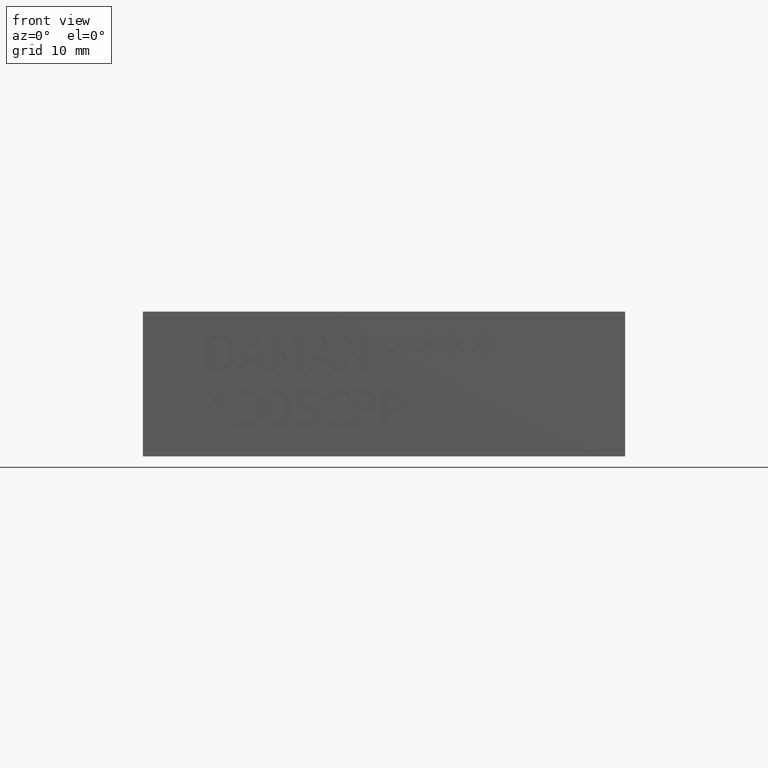
[diagram: clean part render]
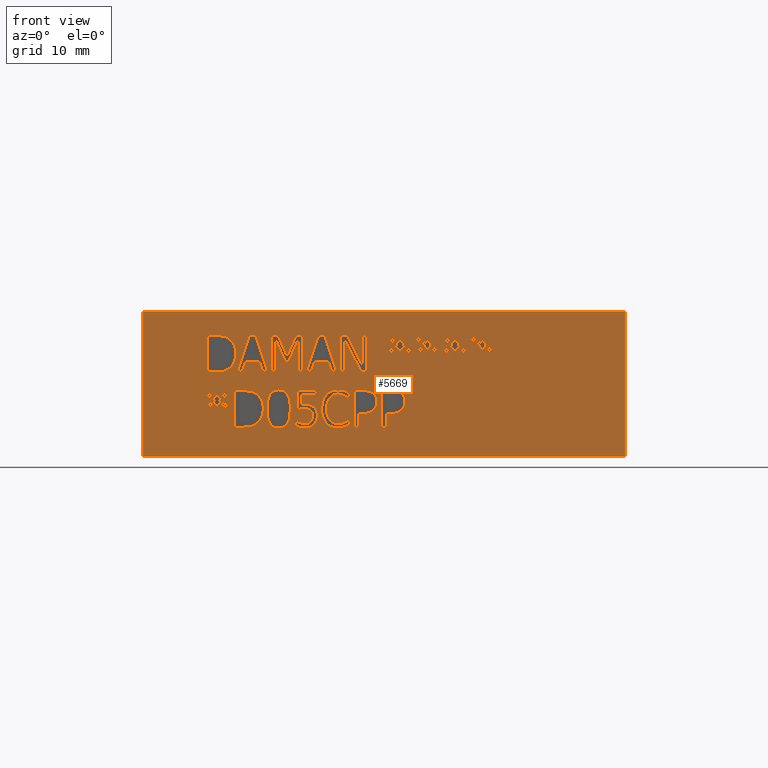
[diagram: same view with one face highlighted and labeled with its STEP entity id]
A machine part, front view. The second image highlights one B-rep face of the part: STEP entity #5669.
In plain terms, the highlighted planar face has unit normal (0, -1, 0).
Its self-contained STEP definition (entity closure, byte-faithful):
#59=FACE_BOUND('',#717,.T.);
#60=FACE_BOUND('',#718,.T.);
#61=FACE_BOUND('',#719,.T.);
#62=FACE_BOUND('',#720,.T.);
#63=FACE_BOUND('',#721,.T.);
#64=FACE_BOUND('',#722,.T.);
#65=FACE_BOUND('',#723,.T.);
#66=FACE_BOUND('',#724,.T.);
#67=FACE_BOUND('',#725,.T.);
#68=FACE_BOUND('',#726,.T.);
#69=FACE_BOUND('',#727,.T.);
#70=FACE_BOUND('',#728,.T.);
#71=FACE_BOUND('',#729,.T.);
#72=FACE_BOUND('',#730,.T.);
#73=FACE_BOUND('',#731,.T.);
#74=FACE_BOUND('',#732,.T.);
#149=PLANE('',#5908);
#422=FACE_OUTER_BOUND('',#716,.T.);
#716=EDGE_LOOP('',(#4201,#4202,#4203,#4204));
#717=EDGE_LOOP('',(#4205,#4206,#4207,#4208,#4209,#4210,#4211,#4212,#4213));
#718=EDGE_LOOP('',(#4214,#4215,#4216,#4217,#4218,#4219,#4220,#4221,#4222));
#719=EDGE_LOOP('',(#4223,#4224,#4225,#4226,#4227,#4228,#4229,#4230,#4231,
#4232,#4233,#4234,#4235,#4236,#4237,#4238,#4239,#4240,#4241,#4242));
#720=EDGE_LOOP('',(#4243,#4244,#4245,#4246));
#721=EDGE_LOOP('',(#4247,#4248,#4249,#4250,#4251,#4252,#4253));
#722=EDGE_LOOP('',(#4254,#4255,#4256,#4257,#4258,#4259,#4260,#4261,#4262,
#4263,#4264,#4265,#4266,#4267,#4268,#4269,#4270,#4271));
#723=EDGE_LOOP('',(#4272,#4273,#4274,#4275,#4276,#4277,#4278,#4279,#4280,
#4281,#4282,#4283,#4284,#4285,#4286,#4287,#4288,#4289,#4290,#4291));
#724=EDGE_LOOP('',(#4292,#4293,#4294,#4295,#4296,#4297,#4298,#4299,#4300,
#4301,#4302,#4303,#4304,#4305,#4306,#4307,#4308,#4309));
#725=EDGE_LOOP('',(#4310,#4311,#4312,#4313,#4314,#4315,#4316,#4317,#4318,
#4319,#4320,#4321,#4322,#4323,#4324,#4325,#4326,#4327));
#726=EDGE_LOOP('',(#4328,#4329,#4330,#4331,#4332,#4333,#4334,#4335,#4336,
#4337));
#727=EDGE_LOOP('',(#4338,#4339,#4340,#4341,#4342,#4343,#4344,#4345));
#728=EDGE_LOOP('',(#4346,#4347,#4348,#4349,#4350,#4351,#4352));
#729=EDGE_LOOP('',(#4353,#4354,#4355,#4356,#4357,#4358,#4359,#4360));
#730=EDGE_LOOP('',(#4361,#4362,#4363,#4364,#4365,#4366,#4367,#4368,#4369,
#4370,#4371,#4372,#4373));
#731=EDGE_LOOP('',(#4374,#4375,#4376,#4377,#4378,#4379,#4380,#4381,#4382,
#4383,#4384,#4385,#4386,#4387,#4388,#4389,#4390,#4391));
#732=EDGE_LOOP('',(#4392,#4393,#4394,#4395,#4396,#4397,#4398,#4399,#4400,
#4401,#4402,#4403,#4404,#4405,#4406,#4407,#4408,#4409));
#931=LINE('',#7353,#1547);
#934=LINE('',#7359,#1550);
#937=LINE('',#7365,#1553);
#940=LINE('',#7371,#1556);
#943=LINE('',#7377,#1559);
#963=LINE('',#7554,#1579);
#966=LINE('',#7560,#1582);
#969=LINE('',#7566,#1585);
#972=LINE('',#7572,#1588);
#975=LINE('',#7578,#1591);
#983=LINE('',#7680,#1599);
#986=LINE('',#7686,#1602);
#989=LINE('',#7692,#1605);
#992=LINE('',#7698,#1608);
#995=LINE('',#7704,#1611);
#1005=LINE('',#7843,#1621);
#1008=LINE('',#7849,#1624);
#1041=LINE('',#8274,#1657);
#1044=LINE('',#8280,#1660);
#1047=LINE('',#8286,#1663);
#1051=LINE('',#8329,#1667);
#1055=LINE('',#8337,#1671);
#1058=LINE('',#8343,#1674);
#1061=LINE('',#8349,#1677);
#1064=LINE('',#8355,#1680);
#1067=LINE('',#8361,#1683);
#1070=LINE('',#8367,#1686);
#1073=LINE('',#8373,#1689);
#1076=LINE('',#8379,#1692);
#1079=LINE('',#8385,#1695);
#1082=LINE('',#8391,#1698);
#1085=LINE('',#8397,#1701);
#1088=LINE('',#8403,#1704);
#1091=LINE('',#8409,#1707);
#1094=LINE('',#8415,#1710);
#1097=LINE('',#8421,#1713);
#1100=LINE('',#8427,#1716);
#1103=LINE('',#8432,#1719);
#1108=LINE('',#8478,#1724);
#1111=LINE('',#8484,#1727);
#1122=LINE('',#8642,#1738);
#1125=LINE('',#8648,#1741);
#1133=LINE('',#8767,#1749);
#1134=LINE('',#8769,#1750);
#1135=LINE('',#8771,#1751);
#1136=LINE('',#8772,#1752);
#1137=LINE('',#8775,#1753);
#1138=LINE('',#8777,#1754);
#1139=LINE('',#8779,#1755);
#1140=LINE('',#8781,#1756);
#1141=LINE('',#8783,#1757);
#1142=LINE('',#8785,#1758);
#1143=LINE('',#8787,#1759);
#1144=LINE('',#8789,#1760);
#1145=LINE('',#8791,#1761);
#1146=LINE('',#8793,#1762);
#1147=LINE('',#8795,#1763);
#1148=LINE('',#8797,#1764);
#1149=LINE('',#8799,#1765);
#1150=LINE('',#8801,#1766);
#1151=LINE('',#8803,#1767);
#1152=LINE('',#8805,#1768);
#1153=LINE('',#8807,#1769);
#1154=LINE('',#8808,#1770);
#1155=LINE('',#8811,#1771);
#1156=LINE('',#8813,#1772);
#1157=LINE('',#8815,#1773);
#1158=LINE('',#8817,#1774);
#1159=LINE('',#8819,#1775);
#1160=LINE('',#8821,#1776);
#1161=LINE('',#8823,#1777);
#1162=LINE('',#8825,#1778);
#1163=LINE('',#8827,#1779);
#1164=LINE('',#8829,#1780);
#1165=LINE('',#8831,#1781);
#1166=LINE('',#8833,#1782);
#1167=LINE('',#8835,#1783);
#1168=LINE('',#8837,#1784);
#1169=LINE('',#8839,#1785);
#1170=LINE('',#8841,#1786);
#1171=LINE('',#8843,#1787);
#1172=LINE('',#8844,#1788);
#1173=LINE('',#8847,#1789);
#1174=LINE('',#8849,#1790);
#1175=LINE('',#8851,#1791);
#1176=LINE('',#8853,#1792);
#1177=LINE('',#8855,#1793);
#1178=LINE('',#8857,#1794);
#1179=LINE('',#8859,#1795);
#1180=LINE('',#8861,#1796);
#1181=LINE('',#8863,#1797);
#1182=LINE('',#8864,#1798);
#1183=LINE('',#8867,#1799);
#1184=LINE('',#8869,#1800);
#1185=LINE('',#8871,#1801);
#1186=LINE('',#8873,#1802);
#1187=LINE('',#8875,#1803);
#1188=LINE('',#8877,#1804);
#1189=LINE('',#8879,#1805);
#1190=LINE('',#8880,#1806);
#1191=LINE('',#8898,#1807);
#1192=LINE('',#8900,#1808);
#1193=LINE('',#8902,#1809);
#1194=LINE('',#8909,#1810);
#1195=LINE('',#8911,#1811);
#1196=LINE('',#8913,#1812);
#1197=LINE('',#8915,#1813);
#1198=LINE('',#8917,#1814);
#1199=LINE('',#8919,#1815);
#1200=LINE('',#8921,#1816);
#1201=LINE('',#8922,#1817);
#1202=LINE('',#8925,#1818);
#1203=LINE('',#8927,#1819);
#1204=LINE('',#8929,#1820);
#1205=LINE('',#8931,#1821);
#1206=LINE('',#8933,#1822);
#1207=LINE('',#8935,#1823);
#1208=LINE('',#8937,#1824);
#1209=LINE('',#8939,#1825);
#1210=LINE('',#8941,#1826);
#1211=LINE('',#8943,#1827);
#1212=LINE('',#8945,#1828);
#1213=LINE('',#8947,#1829);
#1214=LINE('',#8948,#1830);
#1215=LINE('',#8951,#1831);
#1216=LINE('',#8953,#1832);
#1217=LINE('',#8955,#1833);
#1218=LINE('',#8957,#1834);
#1219=LINE('',#8959,#1835);
#1220=LINE('',#8961,#1836);
#1221=LINE('',#8963,#1837);
#1222=LINE('',#8965,#1838);
#1223=LINE('',#8967,#1839);
#1224=LINE('',#8969,#1840);
#1225=LINE('',#8971,#1841);
#1226=LINE('',#8973,#1842);
#1227=LINE('',#8975,#1843);
#1228=LINE('',#8977,#1844);
#1229=LINE('',#8979,#1845);
#1230=LINE('',#8981,#1846);
#1231=LINE('',#8983,#1847);
#1232=LINE('',#8984,#1848);
#1233=LINE('',#8987,#1849);
#1234=LINE('',#8989,#1850);
#1235=LINE('',#8991,#1851);
#1236=LINE('',#8993,#1852);
#1237=LINE('',#8995,#1853);
#1238=LINE('',#8997,#1854);
#1239=LINE('',#8999,#1855);
#1240=LINE('',#9001,#1856);
#1241=LINE('',#9003,#1857);
#1242=LINE('',#9005,#1858);
#1243=LINE('',#9007,#1859);
#1244=LINE('',#9009,#1860);
#1245=LINE('',#9011,#1861);
#1246=LINE('',#9013,#1862);
#1247=LINE('',#9015,#1863);
#1248=LINE('',#9017,#1864);
#1249=LINE('',#9019,#1865);
#1250=LINE('',#9020,#1866);
#1547=VECTOR('',#6125,10.);
#1550=VECTOR('',#6130,10.);
#1553=VECTOR('',#6135,10.);
#1556=VECTOR('',#6140,10.);
#1559=VECTOR('',#6145,10.);
#1579=VECTOR('',#6175,10.);
#1582=VECTOR('',#6180,10.);
#1585=VECTOR('',#6185,10.);
#1588=VECTOR('',#6190,10.);
#1591=VECTOR('',#6195,10.);
#1599=VECTOR('',#6207,10.);
#1602=VECTOR('',#6212,10.);
#1605=VECTOR('',#6217,10.);
#1608=VECTOR('',#6222,10.);
#1611=VECTOR('',#6227,10.);
#1621=VECTOR('',#6239,10.);
#1624=VECTOR('',#6244,10.);
#1657=VECTOR('',#6289,10.);
#1660=VECTOR('',#6294,10.);
#1663=VECTOR('',#6299,10.);
#1667=VECTOR('',#6307,10.);
#1671=VECTOR('',#6313,10.);
#1674=VECTOR('',#6318,10.);
#1677=VECTOR('',#6323,10.);
#1680=VECTOR('',#6328,10.);
#1683=VECTOR('',#6333,10.);
#1686=VECTOR('',#6338,10.);
#1689=VECTOR('',#6343,10.);
#1692=VECTOR('',#6348,10.);
#1695=VECTOR('',#6353,10.);
#1698=VECTOR('',#6358,10.);
#1701=VECTOR('',#6363,10.);
#1704=VECTOR('',#6368,10.);
#1707=VECTOR('',#6373,10.);
#1710=VECTOR('',#6378,10.);
#1713=VECTOR('',#6383,10.);
#1716=VECTOR('',#6388,10.);
#1719=VECTOR('',#6393,10.);
#1724=VECTOR('',#6402,10.);
#1727=VECTOR('',#6407,10.);
#1738=VECTOR('',#6420,10.);
#1741=VECTOR('',#6425,10.);
#1749=VECTOR('',#6437,10.);
#1750=VECTOR('',#6438,10.);
#1751=VECTOR('',#6439,10.);
#1752=VECTOR('',#6440,10.);
#1753=VECTOR('',#6441,10.);
#1754=VECTOR('',#6442,10.);
#1755=VECTOR('',#6443,10.);
#1756=VECTOR('',#6444,10.);
#1757=VECTOR('',#6445,10.);
#1758=VECTOR('',#6446,10.);
#1759=VECTOR('',#6447,10.);
#1760=VECTOR('',#6448,10.);
#1761=VECTOR('',#6449,10.);
#1762=VECTOR('',#6450,10.);
#1763=VECTOR('',#6451,10.);
#1764=VECTOR('',#6452,10.);
#1765=VECTOR('',#6453,10.);
#1766=VECTOR('',#6454,10.);
#1767=VECTOR('',#6455,10.);
#1768=VECTOR('',#6456,10.);
#1769=VECTOR('',#6457,10.);
#1770=VECTOR('',#6458,10.);
#1771=VECTOR('',#6459,10.);
#1772=VECTOR('',#6460,10.);
#1773=VECTOR('',#6461,10.);
#1774=VECTOR('',#6462,10.);
#1775=VECTOR('',#6463,10.);
#1776=VECTOR('',#6464,10.);
#1777=VECTOR('',#6465,10.);
#1778=VECTOR('',#6466,10.);
#1779=VECTOR('',#6467,10.);
#1780=VECTOR('',#6468,10.);
#1781=VECTOR('',#6469,10.);
#1782=VECTOR('',#6470,10.);
#1783=VECTOR('',#6471,10.);
#1784=VECTOR('',#6472,10.);
#1785=VECTOR('',#6473,10.);
#1786=VECTOR('',#6474,10.);
#1787=VECTOR('',#6475,10.);
#1788=VECTOR('',#6476,10.);
#1789=VECTOR('',#6477,10.);
#1790=VECTOR('',#6478,10.);
#1791=VECTOR('',#6479,10.);
#1792=VECTOR('',#6480,10.);
#1793=VECTOR('',#6481,10.);
#1794=VECTOR('',#6482,10.);
#1795=VECTOR('',#6483,10.);
#1796=VECTOR('',#6484,10.);
#1797=VECTOR('',#6485,10.);
#1798=VECTOR('',#6486,10.);
#1799=VECTOR('',#6487,10.);
#1800=VECTOR('',#6488,10.);
#1801=VECTOR('',#6489,10.);
#1802=VECTOR('',#6490,10.);
#1803=VECTOR('',#6491,10.);
#1804=VECTOR('',#6492,10.);
#1805=VECTOR('',#6493,10.);
#1806=VECTOR('',#6494,10.);
#1807=VECTOR('',#6495,10.);
#1808=VECTOR('',#6496,10.);
#1809=VECTOR('',#6497,10.);
#1810=VECTOR('',#6498,10.);
#1811=VECTOR('',#6499,10.);
#1812=VECTOR('',#6500,10.);
#1813=VECTOR('',#6501,10.);
#1814=VECTOR('',#6502,10.);
#1815=VECTOR('',#6503,10.);
#1816=VECTOR('',#6504,10.);
#1817=VECTOR('',#6505,10.);
#1818=VECTOR('',#6506,10.);
#1819=VECTOR('',#6507,10.);
#1820=VECTOR('',#6508,10.);
#1821=VECTOR('',#6509,10.);
#1822=VECTOR('',#6510,10.);
#1823=VECTOR('',#6511,10.);
#1824=VECTOR('',#6512,10.);
#1825=VECTOR('',#6513,10.);
#1826=VECTOR('',#6514,10.);
#1827=VECTOR('',#6515,10.);
#1828=VECTOR('',#6516,10.);
#1829=VECTOR('',#6517,10.);
#1830=VECTOR('',#6518,10.);
#1831=VECTOR('',#6519,10.);
#1832=VECTOR('',#6520,10.);
#1833=VECTOR('',#6521,10.);
#1834=VECTOR('',#6522,10.);
#1835=VECTOR('',#6523,10.);
#1836=VECTOR('',#6524,10.);
#1837=VECTOR('',#6525,10.);
#1838=VECTOR('',#6526,10.);
#1839=VECTOR('',#6527,10.);
#1840=VECTOR('',#6528,10.);
#1841=VECTOR('',#6529,10.);
#1842=VECTOR('',#6530,10.);
#1843=VECTOR('',#6531,10.);
#1844=VECTOR('',#6532,10.);
#1845=VECTOR('',#6533,10.);
#1846=VECTOR('',#6534,10.);
#1847=VECTOR('',#6535,10.);
#1848=VECTOR('',#6536,10.);
#1849=VECTOR('',#6537,10.);
#1850=VECTOR('',#6538,10.);
#1851=VECTOR('',#6539,10.);
#1852=VECTOR('',#6540,10.);
#1853=VECTOR('',#6541,10.);
#1854=VECTOR('',#6542,10.);
#1855=VECTOR('',#6543,10.);
#1856=VECTOR('',#6544,10.);
#1857=VECTOR('',#6545,10.);
#1858=VECTOR('',#6546,10.);
#1859=VECTOR('',#6547,10.);
#1860=VECTOR('',#6548,10.);
#1861=VECTOR('',#6549,10.);
#1862=VECTOR('',#6550,10.);
#1863=VECTOR('',#6551,10.);
#1864=VECTOR('',#6552,10.);
#1865=VECTOR('',#6553,10.);
#1866=VECTOR('',#6554,10.);
#2155=B_SPLINE_CURVE_WITH_KNOTS('',2,(#7320,#7321,#7322,#7323),
 .UNSPECIFIED.,.F.,.F.,(3,1,3),(0.,1.,2.),.UNSPECIFIED.);
#2157=B_SPLINE_CURVE_WITH_KNOTS('',2,(#7341,#7342,#7343,#7344),
 .UNSPECIFIED.,.F.,.F.,(3,1,3),(0.,1.,2.),.UNSPECIFIED.);
#2159=B_SPLINE_CURVE_WITH_KNOTS('',2,(#7390,#7391,#7392,#7393),
 .UNSPECIFIED.,.F.,.F.,(3,1,3),(0.,1.,2.),.UNSPECIFIED.);
#2161=B_SPLINE_CURVE_WITH_KNOTS('',2,(#7408,#7409,#7410,#7411),
 .UNSPECIFIED.,.F.,.F.,(3,1,3),(0.,1.,2.),.UNSPECIFIED.);
#2171=B_SPLINE_CURVE_WITH_KNOTS('',2,(#7521,#7522,#7523,#7524),
 .UNSPECIFIED.,.F.,.F.,(3,1,3),(0.,1.,2.),.UNSPECIFIED.);
#2173=B_SPLINE_CURVE_WITH_KNOTS('',2,(#7542,#7543,#7544,#7545),
 .UNSPECIFIED.,.F.,.F.,(3,1,3),(0.,1.,2.),.UNSPECIFIED.);
#2175=B_SPLINE_CURVE_WITH_KNOTS('',2,(#7591,#7592,#7593,#7594),
 .UNSPECIFIED.,.F.,.F.,(3,1,3),(0.,1.,2.),.UNSPECIFIED.);
#2177=B_SPLINE_CURVE_WITH_KNOTS('',2,(#7609,#7610,#7611,#7612),
 .UNSPECIFIED.,.F.,.F.,(3,1,3),(0.,1.,2.),.UNSPECIFIED.);
#2179=B_SPLINE_CURVE_WITH_KNOTS('',2,(#7628,#7629,#7630,#7631),
 .UNSPECIFIED.,.F.,.F.,(3,1,3),(0.,1.,2.),.UNSPECIFIED.);
#2181=B_SPLINE_CURVE_WITH_KNOTS('',2,(#7649,#7650,#7651,#7652),
 .UNSPECIFIED.,.F.,.F.,(3,1,3),(0.,1.,2.),.UNSPECIFIED.);
#2183=B_SPLINE_CURVE_WITH_KNOTS('',2,(#7668,#7669,#7670,#7671),
 .UNSPECIFIED.,.F.,.F.,(3,1,3),(0.,1.,2.),.UNSPECIFIED.);
#2185=B_SPLINE_CURVE_WITH_KNOTS('',2,(#7717,#7718,#7719,#7720),
 .UNSPECIFIED.,.F.,.F.,(3,1,3),(0.,1.,2.),.UNSPECIFIED.);
#2187=B_SPLINE_CURVE_WITH_KNOTS('',2,(#7736,#7737,#7738,#7739),
 .UNSPECIFIED.,.F.,.F.,(3,1,3),(0.,1.,2.),.UNSPECIFIED.);
#2189=B_SPLINE_CURVE_WITH_KNOTS('',2,(#7755,#7756,#7757,#7758),
 .UNSPECIFIED.,.F.,.F.,(3,1,3),(0.,1.,2.),.UNSPECIFIED.);
#2191=B_SPLINE_CURVE_WITH_KNOTS('',2,(#7774,#7775,#7776,#7777),
 .UNSPECIFIED.,.F.,.F.,(3,1,3),(0.,1.,2.),.UNSPECIFIED.);
#2193=B_SPLINE_CURVE_WITH_KNOTS('',2,(#7793,#7794,#7795,#7796),
 .UNSPECIFIED.,.F.,.F.,(3,1,3),(0.,1.,2.),.UNSPECIFIED.);
#2195=B_SPLINE_CURVE_WITH_KNOTS('',2,(#7812,#7813,#7814,#7815),
 .UNSPECIFIED.,.F.,.F.,(3,1,3),(0.,1.,2.),.UNSPECIFIED.);
#2197=B_SPLINE_CURVE_WITH_KNOTS('',2,(#7831,#7832,#7833,#7834),
 .UNSPECIFIED.,.F.,.F.,(3,1,3),(0.,1.,2.),.UNSPECIFIED.);
#2199=B_SPLINE_CURVE_WITH_KNOTS('',2,(#7862,#7863,#7864,#7865),
 .UNSPECIFIED.,.F.,.F.,(3,1,3),(0.,1.,2.),.UNSPECIFIED.);
#2201=B_SPLINE_CURVE_WITH_KNOTS('',2,(#7881,#7882,#7883,#7884),
 .UNSPECIFIED.,.F.,.F.,(3,1,3),(0.,1.,2.),.UNSPECIFIED.);
#2203=B_SPLINE_CURVE_WITH_KNOTS('',2,(#7899,#7900,#7901,#7902),
 .UNSPECIFIED.,.F.,.F.,(3,1,3),(0.,1.,2.),.UNSPECIFIED.);
#2221=B_SPLINE_CURVE_WITH_KNOTS('',2,(#8070,#8071,#8072,#8073),
 .UNSPECIFIED.,.F.,.F.,(3,1,3),(0.,1.,2.),.UNSPECIFIED.);
#2223=B_SPLINE_CURVE_WITH_KNOTS('',2,(#8091,#8092,#8093,#8094),
 .UNSPECIFIED.,.F.,.F.,(3,1,3),(0.,1.,2.),.UNSPECIFIED.);
#2225=B_SPLINE_CURVE_WITH_KNOTS('',2,(#8110,#8111,#8112,#8113),
 .UNSPECIFIED.,.F.,.F.,(3,1,3),(0.,1.,2.),.UNSPECIFIED.);
#2227=B_SPLINE_CURVE_WITH_KNOTS('',2,(#8128,#8129,#8130,#8131),
 .UNSPECIFIED.,.F.,.F.,(3,1,3),(0.,1.,2.),.UNSPECIFIED.);
#2237=B_SPLINE_CURVE_WITH_KNOTS('',2,(#8241,#8242,#8243,#8244),
 .UNSPECIFIED.,.F.,.F.,(3,1,3),(0.,1.,2.),.UNSPECIFIED.);
#2239=B_SPLINE_CURVE_WITH_KNOTS('',2,(#8262,#8263,#8264,#8265),
 .UNSPECIFIED.,.F.,.F.,(3,1,3),(0.,1.,2.),.UNSPECIFIED.);
#2241=B_SPLINE_CURVE_WITH_KNOTS('',2,(#8299,#8300,#8301,#8302),
 .UNSPECIFIED.,.F.,.F.,(3,1,3),(0.,1.,2.),.UNSPECIFIED.);
#2243=B_SPLINE_CURVE_WITH_KNOTS('',2,(#8317,#8318,#8319,#8320),
 .UNSPECIFIED.,.F.,.F.,(3,1,3),(0.,1.,2.),.UNSPECIFIED.);
#2245=B_SPLINE_CURVE_WITH_KNOTS('',2,(#8445,#8446,#8447,#8448),
 .UNSPECIFIED.,.F.,.F.,(3,1,3),(0.,1.,2.),.UNSPECIFIED.);
#2247=B_SPLINE_CURVE_WITH_KNOTS('',2,(#8466,#8467,#8468,#8469),
 .UNSPECIFIED.,.F.,.F.,(3,1,3),(0.,1.,2.),.UNSPECIFIED.);
#2249=B_SPLINE_CURVE_WITH_KNOTS('',2,(#8497,#8498,#8499,#8500),
 .UNSPECIFIED.,.F.,.F.,(3,1,3),(0.,1.,2.),.UNSPECIFIED.);
#2251=B_SPLINE_CURVE_WITH_KNOTS('',2,(#8516,#8517,#8518,#8519),
 .UNSPECIFIED.,.F.,.F.,(3,1,3),(0.,1.,2.),.UNSPECIFIED.);
#2253=B_SPLINE_CURVE_WITH_KNOTS('',2,(#8535,#8536,#8537,#8538),
 .UNSPECIFIED.,.F.,.F.,(3,1,3),(0.,1.,2.),.UNSPECIFIED.);
#2255=B_SPLINE_CURVE_WITH_KNOTS('',2,(#8554,#8555,#8556,#8557),
 .UNSPECIFIED.,.F.,.F.,(3,1,3),(0.,1.,2.),.UNSPECIFIED.);
#2257=B_SPLINE_CURVE_WITH_KNOTS('',2,(#8573,#8574,#8575,#8576),
 .UNSPECIFIED.,.F.,.F.,(3,1,3),(0.,1.,2.),.UNSPECIFIED.);
#2259=B_SPLINE_CURVE_WITH_KNOTS('',2,(#8592,#8593,#8594,#8595),
 .UNSPECIFIED.,.F.,.F.,(3,1,3),(0.,1.,2.),.UNSPECIFIED.);
#2261=B_SPLINE_CURVE_WITH_KNOTS('',2,(#8611,#8612,#8613,#8614),
 .UNSPECIFIED.,.F.,.F.,(3,1,3),(0.,1.,2.),.UNSPECIFIED.);
#2263=B_SPLINE_CURVE_WITH_KNOTS('',2,(#8630,#8631,#8632,#8633),
 .UNSPECIFIED.,.F.,.F.,(3,1,3),(0.,1.,2.),.UNSPECIFIED.);
#2265=B_SPLINE_CURVE_WITH_KNOTS('',2,(#8661,#8662,#8663,#8664),
 .UNSPECIFIED.,.F.,.F.,(3,1,3),(0.,1.,2.),.UNSPECIFIED.);
#2267=B_SPLINE_CURVE_WITH_KNOTS('',2,(#8680,#8681,#8682,#8683),
 .UNSPECIFIED.,.F.,.F.,(3,1,3),(0.,1.,2.),.UNSPECIFIED.);
#2269=B_SPLINE_CURVE_WITH_KNOTS('',2,(#8699,#8700,#8701,#8702),
 .UNSPECIFIED.,.F.,.F.,(3,1,3),(0.,1.,2.),.UNSPECIFIED.);
#2271=B_SPLINE_CURVE_WITH_KNOTS('',2,(#8718,#8719,#8720,#8721),
 .UNSPECIFIED.,.F.,.F.,(3,1,3),(0.,1.,2.),.UNSPECIFIED.);
#2273=B_SPLINE_CURVE_WITH_KNOTS('',2,(#8737,#8738,#8739,#8740),
 .UNSPECIFIED.,.F.,.F.,(3,1,3),(0.,1.,2.),.UNSPECIFIED.);
#2275=B_SPLINE_CURVE_WITH_KNOTS('',2,(#8755,#8756,#8757,#8758),
 .UNSPECIFIED.,.F.,.F.,(3,1,3),(0.,1.,2.),.UNSPECIFIED.);
#2277=B_SPLINE_CURVE_WITH_KNOTS('',2,(#8883,#8884,#8885,#8886),
 .UNSPECIFIED.,.F.,.F.,(3,1,3),(0.,1.,2.),.UNSPECIFIED.);
#2278=B_SPLINE_CURVE_WITH_KNOTS('',2,(#8888,#8889,#8890,#8891),
 .UNSPECIFIED.,.F.,.F.,(3,1,3),(0.,1.,2.),.UNSPECIFIED.);
#2279=B_SPLINE_CURVE_WITH_KNOTS('',2,(#8893,#8894,#8895,#8896),
 .UNSPECIFIED.,.F.,.F.,(3,1,3),(0.,1.,2.),.UNSPECIFIED.);
#2280=B_SPLINE_CURVE_WITH_KNOTS('',2,(#8903,#8904,#8905,#8906),
 .UNSPECIFIED.,.F.,.F.,(3,1,3),(0.,1.,2.),.UNSPECIFIED.);
#2307=VERTEX_POINT('',#7318);
#2308=VERTEX_POINT('',#7319);
#2311=VERTEX_POINT('',#7340);
#2313=VERTEX_POINT('',#7352);
#2315=VERTEX_POINT('',#7358);
#2317=VERTEX_POINT('',#7364);
#2319=VERTEX_POINT('',#7370);
#2321=VERTEX_POINT('',#7376);
#2323=VERTEX_POINT('',#7389);
#2339=VERTEX_POINT('',#7519);
#2340=VERTEX_POINT('',#7520);
#2343=VERTEX_POINT('',#7541);
#2345=VERTEX_POINT('',#7553);
#2347=VERTEX_POINT('',#7559);
#2349=VERTEX_POINT('',#7565);
#2351=VERTEX_POINT('',#7571);
#2353=VERTEX_POINT('',#7577);
#2355=VERTEX_POINT('',#7590);
#2357=VERTEX_POINT('',#7626);
#2358=VERTEX_POINT('',#7627);
#2361=VERTEX_POINT('',#7648);
#2363=VERTEX_POINT('',#7667);
#2365=VERTEX_POINT('',#7679);
#2367=VERTEX_POINT('',#7685);
#2369=VERTEX_POINT('',#7691);
#2371=VERTEX_POINT('',#7697);
#2373=VERTEX_POINT('',#7703);
#2375=VERTEX_POINT('',#7716);
#2377=VERTEX_POINT('',#7735);
#2379=VERTEX_POINT('',#7754);
#2381=VERTEX_POINT('',#7773);
#2383=VERTEX_POINT('',#7792);
#2385=VERTEX_POINT('',#7811);
#2387=VERTEX_POINT('',#7830);
#2389=VERTEX_POINT('',#7842);
#2391=VERTEX_POINT('',#7848);
#2393=VERTEX_POINT('',#7861);
#2395=VERTEX_POINT('',#7880);
#2413=VERTEX_POINT('',#8068);
#2414=VERTEX_POINT('',#8069);
#2417=VERTEX_POINT('',#8090);
#2419=VERTEX_POINT('',#8109);
#2435=VERTEX_POINT('',#8239);
#2436=VERTEX_POINT('',#8240);
#2439=VERTEX_POINT('',#8261);
#2441=VERTEX_POINT('',#8273);
#2443=VERTEX_POINT('',#8279);
#2445=VERTEX_POINT('',#8285);
#2447=VERTEX_POINT('',#8298);
#2449=VERTEX_POINT('',#8327);
#2450=VERTEX_POINT('',#8328);
#2453=VERTEX_POINT('',#8336);
#2455=VERTEX_POINT('',#8342);
#2457=VERTEX_POINT('',#8348);
#2459=VERTEX_POINT('',#8354);
#2461=VERTEX_POINT('',#8360);
#2463=VERTEX_POINT('',#8366);
#2465=VERTEX_POINT('',#8372);
#2467=VERTEX_POINT('',#8378);
#2469=VERTEX_POINT('',#8384);
#2471=VERTEX_POINT('',#8390);
#2473=VERTEX_POINT('',#8396);
#2475=VERTEX_POINT('',#8402);
#2477=VERTEX_POINT('',#8408);
#2479=VERTEX_POINT('',#8414);
#2481=VERTEX_POINT('',#8420);
#2483=VERTEX_POINT('',#8426);
#2485=VERTEX_POINT('',#8443);
#2486=VERTEX_POINT('',#8444);
#2489=VERTEX_POINT('',#8465);
#2491=VERTEX_POINT('',#8477);
#2493=VERTEX_POINT('',#8483);
#2495=VERTEX_POINT('',#8496);
#2497=VERTEX_POINT('',#8515);
#2499=VERTEX_POINT('',#8534);
#2501=VERTEX_POINT('',#8553);
#2503=VERTEX_POINT('',#8572);
#2505=VERTEX_POINT('',#8591);
#2507=VERTEX_POINT('',#8610);
#2509=VERTEX_POINT('',#8629);
#2511=VERTEX_POINT('',#8641);
#2513=VERTEX_POINT('',#8647);
#2515=VERTEX_POINT('',#8660);
#2517=VERTEX_POINT('',#8679);
#2519=VERTEX_POINT('',#8698);
#2521=VERTEX_POINT('',#8717);
#2523=VERTEX_POINT('',#8736);
#2525=VERTEX_POINT('',#8765);
#2526=VERTEX_POINT('',#8766);
#2527=VERTEX_POINT('',#8768);
#2528=VERTEX_POINT('',#8770);
#2529=VERTEX_POINT('',#8773);
#2530=VERTEX_POINT('',#8774);
#2531=VERTEX_POINT('',#8776);
#2532=VERTEX_POINT('',#8778);
#2533=VERTEX_POINT('',#8780);
#2534=VERTEX_POINT('',#8782);
#2535=VERTEX_POINT('',#8784);
#2536=VERTEX_POINT('',#8786);
#2537=VERTEX_POINT('',#8788);
#2538=VERTEX_POINT('',#8790);
#2539=VERTEX_POINT('',#8792);
#2540=VERTEX_POINT('',#8794);
#2541=VERTEX_POINT('',#8796);
#2542=VERTEX_POINT('',#8798);
#2543=VERTEX_POINT('',#8800);
#2544=VERTEX_POINT('',#8802);
#2545=VERTEX_POINT('',#8804);
#2546=VERTEX_POINT('',#8806);
#2547=VERTEX_POINT('',#8809);
#2548=VERTEX_POINT('',#8810);
#2549=VERTEX_POINT('',#8812);
#2550=VERTEX_POINT('',#8814);
#2551=VERTEX_POINT('',#8816);
#2552=VERTEX_POINT('',#8818);
#2553=VERTEX_POINT('',#8820);
#2554=VERTEX_POINT('',#8822);
#2555=VERTEX_POINT('',#8824);
#2556=VERTEX_POINT('',#8826);
#2557=VERTEX_POINT('',#8828);
#2558=VERTEX_POINT('',#8830);
#2559=VERTEX_POINT('',#8832);
#2560=VERTEX_POINT('',#8834);
#2561=VERTEX_POINT('',#8836);
#2562=VERTEX_POINT('',#8838);
#2563=VERTEX_POINT('',#8840);
#2564=VERTEX_POINT('',#8842);
#2565=VERTEX_POINT('',#8845);
#2566=VERTEX_POINT('',#8846);
#2567=VERTEX_POINT('',#8848);
#2568=VERTEX_POINT('',#8850);
#2569=VERTEX_POINT('',#8852);
#2570=VERTEX_POINT('',#8854);
#2571=VERTEX_POINT('',#8856);
#2572=VERTEX_POINT('',#8858);
#2573=VERTEX_POINT('',#8860);
#2574=VERTEX_POINT('',#8862);
#2575=VERTEX_POINT('',#8865);
#2576=VERTEX_POINT('',#8866);
#2577=VERTEX_POINT('',#8868);
#2578=VERTEX_POINT('',#8870);
#2579=VERTEX_POINT('',#8872);
#2580=VERTEX_POINT('',#8874);
#2581=VERTEX_POINT('',#8876);
#2582=VERTEX_POINT('',#8878);
#2583=VERTEX_POINT('',#8881);
#2584=VERTEX_POINT('',#8882);
#2585=VERTEX_POINT('',#8887);
#2586=VERTEX_POINT('',#8892);
#2587=VERTEX_POINT('',#8897);
#2588=VERTEX_POINT('',#8899);
#2589=VERTEX_POINT('',#8901);
#2590=VERTEX_POINT('',#8907);
#2591=VERTEX_POINT('',#8908);
#2592=VERTEX_POINT('',#8910);
#2593=VERTEX_POINT('',#8912);
#2594=VERTEX_POINT('',#8914);
#2595=VERTEX_POINT('',#8916);
#2596=VERTEX_POINT('',#8918);
#2597=VERTEX_POINT('',#8920);
#2598=VERTEX_POINT('',#8923);
#2599=VERTEX_POINT('',#8924);
#2600=VERTEX_POINT('',#8926);
#2601=VERTEX_POINT('',#8928);
#2602=VERTEX_POINT('',#8930);
#2603=VERTEX_POINT('',#8932);
#2604=VERTEX_POINT('',#8934);
#2605=VERTEX_POINT('',#8936);
#2606=VERTEX_POINT('',#8938);
#2607=VERTEX_POINT('',#8940);
#2608=VERTEX_POINT('',#8942);
#2609=VERTEX_POINT('',#8944);
#2610=VERTEX_POINT('',#8946);
#2611=VERTEX_POINT('',#8949);
#2612=VERTEX_POINT('',#8950);
#2613=VERTEX_POINT('',#8952);
#2614=VERTEX_POINT('',#8954);
#2615=VERTEX_POINT('',#8956);
#2616=VERTEX_POINT('',#8958);
#2617=VERTEX_POINT('',#8960);
#2618=VERTEX_POINT('',#8962);
#2619=VERTEX_POINT('',#8964);
#2620=VERTEX_POINT('',#8966);
#2621=VERTEX_POINT('',#8968);
#2622=VERTEX_POINT('',#8970);
#2623=VERTEX_POINT('',#8972);
#2624=VERTEX_POINT('',#8974);
#2625=VERTEX_POINT('',#8976);
#2626=VERTEX_POINT('',#8978);
#2627=VERTEX_POINT('',#8980);
#2628=VERTEX_POINT('',#8982);
#2629=VERTEX_POINT('',#8985);
#2630=VERTEX_POINT('',#8986);
#2631=VERTEX_POINT('',#8988);
#2632=VERTEX_POINT('',#8990);
#2633=VERTEX_POINT('',#8992);
#2634=VERTEX_POINT('',#8994);
#2635=VERTEX_POINT('',#8996);
#2636=VERTEX_POINT('',#8998);
#2637=VERTEX_POINT('',#9000);
#2638=VERTEX_POINT('',#9002);
#2639=VERTEX_POINT('',#9004);
#2640=VERTEX_POINT('',#9006);
#2641=VERTEX_POINT('',#9008);
#2642=VERTEX_POINT('',#9010);
#2643=VERTEX_POINT('',#9012);
#2644=VERTEX_POINT('',#9014);
#2645=VERTEX_POINT('',#9016);
#2646=VERTEX_POINT('',#9018);
#2848=EDGE_CURVE('',#2307,#2308,#2155,.T.);
#2852=EDGE_CURVE('',#2311,#2307,#2157,.T.);
#2855=EDGE_CURVE('',#2313,#2311,#931,.T.);
#2858=EDGE_CURVE('',#2315,#2313,#934,.T.);
#2861=EDGE_CURVE('',#2317,#2315,#937,.T.);
#2864=EDGE_CURVE('',#2319,#2317,#940,.T.);
#2867=EDGE_CURVE('',#2321,#2319,#943,.T.);
#2870=EDGE_CURVE('',#2323,#2321,#2159,.T.);
#2873=EDGE_CURVE('',#2308,#2323,#2161,.T.);
#2896=EDGE_CURVE('',#2339,#2340,#2171,.T.);
#2900=EDGE_CURVE('',#2343,#2339,#2173,.T.);
#2903=EDGE_CURVE('',#2345,#2343,#963,.T.);
#2906=EDGE_CURVE('',#2347,#2345,#966,.T.);
#2909=EDGE_CURVE('',#2349,#2347,#969,.T.);
#2912=EDGE_CURVE('',#2351,#2349,#972,.T.);
#2915=EDGE_CURVE('',#2353,#2351,#975,.T.);
#2918=EDGE_CURVE('',#2355,#2353,#2175,.T.);
#2921=EDGE_CURVE('',#2340,#2355,#2177,.T.);
#2923=EDGE_CURVE('',#2357,#2358,#2179,.T.);
#2927=EDGE_CURVE('',#2361,#2357,#2181,.T.);
#2930=EDGE_CURVE('',#2363,#2361,#2183,.T.);
#2933=EDGE_CURVE('',#2365,#2363,#983,.T.);
#2936=EDGE_CURVE('',#2367,#2365,#986,.T.);
#2939=EDGE_CURVE('',#2369,#2367,#989,.T.);
#2942=EDGE_CURVE('',#2371,#2369,#992,.T.);
#2945=EDGE_CURVE('',#2373,#2371,#995,.T.);
#2948=EDGE_CURVE('',#2375,#2373,#2185,.T.);
#2951=EDGE_CURVE('',#2377,#2375,#2187,.T.);
#2954=EDGE_CURVE('',#2379,#2377,#2189,.T.);
#2957=EDGE_CURVE('',#2381,#2379,#2191,.T.);
#2960=EDGE_CURVE('',#2383,#2381,#2193,.T.);
#2963=EDGE_CURVE('',#2385,#2383,#2195,.T.);
#2966=EDGE_CURVE('',#2387,#2385,#2197,.T.);
#2969=EDGE_CURVE('',#2389,#2387,#1005,.T.);
#2972=EDGE_CURVE('',#2391,#2389,#1008,.T.);
#2975=EDGE_CURVE('',#2393,#2391,#2199,.T.);
#2978=EDGE_CURVE('',#2395,#2393,#2201,.T.);
#2981=EDGE_CURVE('',#2358,#2395,#2203,.T.);
#3007=EDGE_CURVE('',#2413,#2414,#2221,.T.);
#3011=EDGE_CURVE('',#2417,#2413,#2223,.T.);
#3014=EDGE_CURVE('',#2419,#2417,#2225,.T.);
#3017=EDGE_CURVE('',#2414,#2419,#2227,.T.);
#3040=EDGE_CURVE('',#2435,#2436,#2237,.T.);
#3044=EDGE_CURVE('',#2439,#2435,#2239,.T.);
#3047=EDGE_CURVE('',#2441,#2439,#1041,.T.);
#3050=EDGE_CURVE('',#2443,#2441,#1044,.T.);
#3053=EDGE_CURVE('',#2445,#2443,#1047,.T.);
#3056=EDGE_CURVE('',#2447,#2445,#2241,.T.);
#3059=EDGE_CURVE('',#2436,#2447,#2243,.T.);
#3061=EDGE_CURVE('',#2449,#2450,#1051,.T.);
#3065=EDGE_CURVE('',#2453,#2449,#1055,.T.);
#3068=EDGE_CURVE('',#2455,#2453,#1058,.T.);
#3071=EDGE_CURVE('',#2457,#2455,#1061,.T.);
#3074=EDGE_CURVE('',#2459,#2457,#1064,.T.);
#3077=EDGE_CURVE('',#2461,#2459,#1067,.T.);
#3080=EDGE_CURVE('',#2463,#2461,#1070,.T.);
#3083=EDGE_CURVE('',#2465,#2463,#1073,.T.);
#3086=EDGE_CURVE('',#2467,#2465,#1076,.T.);
#3089=EDGE_CURVE('',#2469,#2467,#1079,.T.);
#3092=EDGE_CURVE('',#2471,#2469,#1082,.T.);
#3095=EDGE_CURVE('',#2473,#2471,#1085,.T.);
#3098=EDGE_CURVE('',#2475,#2473,#1088,.T.);
#3101=EDGE_CURVE('',#2477,#2475,#1091,.T.);
#3104=EDGE_CURVE('',#2479,#2477,#1094,.T.);
#3107=EDGE_CURVE('',#2481,#2479,#1097,.T.);
#3110=EDGE_CURVE('',#2483,#2481,#1100,.T.);
#3113=EDGE_CURVE('',#2450,#2483,#1103,.T.);
#3115=EDGE_CURVE('',#2485,#2486,#2245,.T.);
#3119=EDGE_CURVE('',#2489,#2485,#2247,.T.);
#3122=EDGE_CURVE('',#2491,#2489,#1108,.T.);
#3125=EDGE_CURVE('',#2493,#2491,#1111,.T.);
#3128=EDGE_CURVE('',#2495,#2493,#2249,.T.);
#3131=EDGE_CURVE('',#2497,#2495,#2251,.T.);
#3134=EDGE_CURVE('',#2499,#2497,#2253,.T.);
#3137=EDGE_CURVE('',#2501,#2499,#2255,.T.);
#3140=EDGE_CURVE('',#2503,#2501,#2257,.T.);
#3143=EDGE_CURVE('',#2505,#2503,#2259,.T.);
#3146=EDGE_CURVE('',#2507,#2505,#2261,.T.);
#3149=EDGE_CURVE('',#2509,#2507,#2263,.T.);
#3152=EDGE_CURVE('',#2511,#2509,#1122,.T.);
#3155=EDGE_CURVE('',#2513,#2511,#1125,.T.);
#3158=EDGE_CURVE('',#2515,#2513,#2265,.T.);
#3161=EDGE_CURVE('',#2517,#2515,#2267,.T.);
#3164=EDGE_CURVE('',#2519,#2517,#2269,.T.);
#3167=EDGE_CURVE('',#2521,#2519,#2271,.T.);
#3170=EDGE_CURVE('',#2523,#2521,#2273,.T.);
#3173=EDGE_CURVE('',#2486,#2523,#2275,.T.);
#3175=EDGE_CURVE('',#2525,#2526,#1133,.T.);
#3176=EDGE_CURVE('',#2526,#2527,#1134,.T.);
#3177=EDGE_CURVE('',#2528,#2527,#1135,.T.);
#3178=EDGE_CURVE('',#2525,#2528,#1136,.T.);
#3179=EDGE_CURVE('',#2529,#2530,#1137,.T.);
#3180=EDGE_CURVE('',#2530,#2531,#1138,.T.);
#3181=EDGE_CURVE('',#2531,#2532,#1139,.T.);
#3182=EDGE_CURVE('',#2532,#2533,#1140,.T.);
#3183=EDGE_CURVE('',#2533,#2534,#1141,.T.);
#3184=EDGE_CURVE('',#2534,#2535,#1142,.T.);
#3185=EDGE_CURVE('',#2535,#2536,#1143,.T.);
#3186=EDGE_CURVE('',#2536,#2537,#1144,.T.);
#3187=EDGE_CURVE('',#2537,#2538,#1145,.T.);
#3188=EDGE_CURVE('',#2538,#2539,#1146,.T.);
#3189=EDGE_CURVE('',#2539,#2540,#1147,.T.);
#3190=EDGE_CURVE('',#2540,#2541,#1148,.T.);
#3191=EDGE_CURVE('',#2541,#2542,#1149,.T.);
#3192=EDGE_CURVE('',#2542,#2543,#1150,.T.);
#3193=EDGE_CURVE('',#2543,#2544,#1151,.T.);
#3194=EDGE_CURVE('',#2544,#2545,#1152,.T.);
#3195=EDGE_CURVE('',#2545,#2546,#1153,.T.);
#3196=EDGE_CURVE('',#2546,#2529,#1154,.T.);
#3197=EDGE_CURVE('',#2547,#2548,#1155,.T.);
#3198=EDGE_CURVE('',#2548,#2549,#1156,.T.);
#3199=EDGE_CURVE('',#2549,#2550,#1157,.T.);
#3200=EDGE_CURVE('',#2550,#2551,#1158,.T.);
#3201=EDGE_CURVE('',#2551,#2552,#1159,.T.);
#3202=EDGE_CURVE('',#2552,#2553,#1160,.T.);
#3203=EDGE_CURVE('',#2553,#2554,#1161,.T.);
#3204=EDGE_CURVE('',#2554,#2555,#1162,.T.);
#3205=EDGE_CURVE('',#2555,#2556,#1163,.T.);
#3206=EDGE_CURVE('',#2556,#2557,#1164,.T.);
#3207=EDGE_CURVE('',#2557,#2558,#1165,.T.);
#3208=EDGE_CURVE('',#2558,#2559,#1166,.T.);
#3209=EDGE_CURVE('',#2559,#2560,#1167,.T.);
#3210=EDGE_CURVE('',#2560,#2561,#1168,.T.);
#3211=EDGE_CURVE('',#2561,#2562,#1169,.T.);
#3212=EDGE_CURVE('',#2562,#2563,#1170,.T.);
#3213=EDGE_CURVE('',#2563,#2564,#1171,.T.);
#3214=EDGE_CURVE('',#2564,#2547,#1172,.T.);
#3215=EDGE_CURVE('',#2565,#2566,#1173,.T.);
#3216=EDGE_CURVE('',#2566,#2567,#1174,.T.);
#3217=EDGE_CURVE('',#2567,#2568,#1175,.T.);
#3218=EDGE_CURVE('',#2568,#2569,#1176,.T.);
#3219=EDGE_CURVE('',#2569,#2570,#1177,.T.);
#3220=EDGE_CURVE('',#2570,#2571,#1178,.T.);
#3221=EDGE_CURVE('',#2571,#2572,#1179,.T.);
#3222=EDGE_CURVE('',#2572,#2573,#1180,.T.);
#3223=EDGE_CURVE('',#2573,#2574,#1181,.T.);
#3224=EDGE_CURVE('',#2574,#2565,#1182,.T.);
#3225=EDGE_CURVE('',#2575,#2576,#1183,.T.);
#3226=EDGE_CURVE('',#2576,#2577,#1184,.T.);
#3227=EDGE_CURVE('',#2577,#2578,#1185,.T.);
#3228=EDGE_CURVE('',#2578,#2579,#1186,.T.);
#3229=EDGE_CURVE('',#2579,#2580,#1187,.T.);
#3230=EDGE_CURVE('',#2580,#2581,#1188,.T.);
#3231=EDGE_CURVE('',#2581,#2582,#1189,.T.);
#3232=EDGE_CURVE('',#2582,#2575,#1190,.T.);
#3233=EDGE_CURVE('',#2583,#2584,#2277,.T.);
#3234=EDGE_CURVE('',#2584,#2585,#2278,.T.);
#3235=EDGE_CURVE('',#2585,#2586,#2279,.T.);
#3236=EDGE_CURVE('',#2586,#2587,#1191,.T.);
#3237=EDGE_CURVE('',#2587,#2588,#1192,.T.);
#3238=EDGE_CURVE('',#2588,#2589,#1193,.T.);
#3239=EDGE_CURVE('',#2589,#2583,#2280,.T.);
#3240=EDGE_CURVE('',#2590,#2591,#1194,.T.);
#3241=EDGE_CURVE('',#2591,#2592,#1195,.T.);
#3242=EDGE_CURVE('',#2592,#2593,#1196,.T.);
#3243=EDGE_CURVE('',#2593,#2594,#1197,.T.);
#3244=EDGE_CURVE('',#2594,#2595,#1198,.T.);
#3245=EDGE_CURVE('',#2595,#2596,#1199,.T.);
#3246=EDGE_CURVE('',#2596,#2597,#1200,.T.);
#3247=EDGE_CURVE('',#2597,#2590,#1201,.T.);
#3248=EDGE_CURVE('',#2598,#2599,#1202,.T.);
#3249=EDGE_CURVE('',#2599,#2600,#1203,.T.);
#3250=EDGE_CURVE('',#2600,#2601,#1204,.T.);
#3251=EDGE_CURVE('',#2601,#2602,#1205,.T.);
#3252=EDGE_CURVE('',#2602,#2603,#1206,.T.);
#3253=EDGE_CURVE('',#2603,#2604,#1207,.T.);
#3254=EDGE_CURVE('',#2604,#2605,#1208,.T.);
#3255=EDGE_CURVE('',#2605,#2606,#1209,.T.);
#3256=EDGE_CURVE('',#2606,#2607,#1210,.T.);
#3257=EDGE_CURVE('',#2607,#2608,#1211,.T.);
#3258=EDGE_CURVE('',#2608,#2609,#1212,.T.);
#3259=EDGE_CURVE('',#2609,#2610,#1213,.T.);
#3260=EDGE_CURVE('',#2610,#2598,#1214,.T.);
#3261=EDGE_CURVE('',#2611,#2612,#1215,.T.);
#3262=EDGE_CURVE('',#2612,#2613,#1216,.T.);
#3263=EDGE_CURVE('',#2613,#2614,#1217,.T.);
#3264=EDGE_CURVE('',#2614,#2615,#1218,.T.);
#3265=EDGE_CURVE('',#2615,#2616,#1219,.T.);
#3266=EDGE_CURVE('',#2616,#2617,#1220,.T.);
#3267=EDGE_CURVE('',#2617,#2618,#1221,.T.);
#3268=EDGE_CURVE('',#2618,#2619,#1222,.T.);
#3269=EDGE_CURVE('',#2619,#2620,#1223,.T.);
#3270=EDGE_CURVE('',#2620,#2621,#1224,.T.);
#3271=EDGE_CURVE('',#2621,#2622,#1225,.T.);
#3272=EDGE_CURVE('',#2622,#2623,#1226,.T.);
#3273=EDGE_CURVE('',#2623,#2624,#1227,.T.);
#3274=EDGE_CURVE('',#2624,#2625,#1228,.T.);
#3275=EDGE_CURVE('',#2625,#2626,#1229,.T.);
#3276=EDGE_CURVE('',#2626,#2627,#1230,.T.);
#3277=EDGE_CURVE('',#2627,#2628,#1231,.T.);
#3278=EDGE_CURVE('',#2628,#2611,#1232,.T.);
#3279=EDGE_CURVE('',#2629,#2630,#1233,.T.);
#3280=EDGE_CURVE('',#2630,#2631,#1234,.T.);
#3281=EDGE_CURVE('',#2631,#2632,#1235,.T.);
#3282=EDGE_CURVE('',#2632,#2633,#1236,.T.);
#3283=EDGE_CURVE('',#2633,#2634,#1237,.T.);
#3284=EDGE_CURVE('',#2634,#2635,#1238,.T.);
#3285=EDGE_CURVE('',#2635,#2636,#1239,.T.);
#3286=EDGE_CURVE('',#2636,#2637,#1240,.T.);
#3287=EDGE_CURVE('',#2637,#2638,#1241,.T.);
#3288=EDGE_CURVE('',#2638,#2639,#1242,.T.);
#3289=EDGE_CURVE('',#2639,#2640,#1243,.T.);
#3290=EDGE_CURVE('',#2640,#2641,#1244,.T.);
#3291=EDGE_CURVE('',#2641,#2642,#1245,.T.);
#3292=EDGE_CURVE('',#2642,#2643,#1246,.T.);
#3293=EDGE_CURVE('',#2643,#2644,#1247,.T.);
#3294=EDGE_CURVE('',#2644,#2645,#1248,.T.);
#3295=EDGE_CURVE('',#2645,#2646,#1249,.T.);
#3296=EDGE_CURVE('',#2646,#2629,#1250,.T.);
#4201=ORIENTED_EDGE('',*,*,#3175,.T.);
#4202=ORIENTED_EDGE('',*,*,#3176,.T.);
#4203=ORIENTED_EDGE('',*,*,#3177,.F.);
#4204=ORIENTED_EDGE('',*,*,#3178,.F.);
#4205=ORIENTED_EDGE('',*,*,#2848,.T.);
#4206=ORIENTED_EDGE('',*,*,#2873,.T.);
#4207=ORIENTED_EDGE('',*,*,#2870,.T.);
#4208=ORIENTED_EDGE('',*,*,#2867,.T.);
#4209=ORIENTED_EDGE('',*,*,#2864,.T.);
#4210=ORIENTED_EDGE('',*,*,#2861,.T.);
#4211=ORIENTED_EDGE('',*,*,#2858,.T.);
#4212=ORIENTED_EDGE('',*,*,#2855,.T.);
#4213=ORIENTED_EDGE('',*,*,#2852,.T.);
#4214=ORIENTED_EDGE('',*,*,#2896,.T.);
#4215=ORIENTED_EDGE('',*,*,#2921,.T.);
#4216=ORIENTED_EDGE('',*,*,#2918,.T.);
#4217=ORIENTED_EDGE('',*,*,#2915,.T.);
#4218=ORIENTED_EDGE('',*,*,#2912,.T.);
#4219=ORIENTED_EDGE('',*,*,#2909,.T.);
#4220=ORIENTED_EDGE('',*,*,#2906,.T.);
#4221=ORIENTED_EDGE('',*,*,#2903,.T.);
#4222=ORIENTED_EDGE('',*,*,#2900,.T.);
#4223=ORIENTED_EDGE('',*,*,#2923,.T.);
#4224=ORIENTED_EDGE('',*,*,#2981,.T.);
#4225=ORIENTED_EDGE('',*,*,#2978,.T.);
#4226=ORIENTED_EDGE('',*,*,#2975,.T.);
#4227=ORIENTED_EDGE('',*,*,#2972,.T.);
#4228=ORIENTED_EDGE('',*,*,#2969,.T.);
#4229=ORIENTED_EDGE('',*,*,#2966,.T.);
#4230=ORIENTED_EDGE('',*,*,#2963,.T.);
#4231=ORIENTED_EDGE('',*,*,#2960,.T.);
#4232=ORIENTED_EDGE('',*,*,#2957,.T.);
#4233=ORIENTED_EDGE('',*,*,#2954,.T.);
#4234=ORIENTED_EDGE('',*,*,#2951,.T.);
#4235=ORIENTED_EDGE('',*,*,#2948,.T.);
#4236=ORIENTED_EDGE('',*,*,#2945,.T.);
#4237=ORIENTED_EDGE('',*,*,#2942,.T.);
#4238=ORIENTED_EDGE('',*,*,#2939,.T.);
#4239=ORIENTED_EDGE('',*,*,#2936,.T.);
#4240=ORIENTED_EDGE('',*,*,#2933,.T.);
#4241=ORIENTED_EDGE('',*,*,#2930,.T.);
#4242=ORIENTED_EDGE('',*,*,#2927,.T.);
#4243=ORIENTED_EDGE('',*,*,#3007,.T.);
#4244=ORIENTED_EDGE('',*,*,#3017,.T.);
#4245=ORIENTED_EDGE('',*,*,#3014,.T.);
#4246=ORIENTED_EDGE('',*,*,#3011,.T.);
#4247=ORIENTED_EDGE('',*,*,#3040,.T.);
#4248=ORIENTED_EDGE('',*,*,#3059,.T.);
#4249=ORIENTED_EDGE('',*,*,#3056,.T.);
#4250=ORIENTED_EDGE('',*,*,#3053,.T.);
#4251=ORIENTED_EDGE('',*,*,#3050,.T.);
#4252=ORIENTED_EDGE('',*,*,#3047,.T.);
#4253=ORIENTED_EDGE('',*,*,#3044,.T.);
#4254=ORIENTED_EDGE('',*,*,#3061,.T.);
#4255=ORIENTED_EDGE('',*,*,#3113,.T.);
#4256=ORIENTED_EDGE('',*,*,#3110,.T.);
#4257=ORIENTED_EDGE('',*,*,#3107,.T.);
#4258=ORIENTED_EDGE('',*,*,#3104,.T.);
#4259=ORIENTED_EDGE('',*,*,#3101,.T.);
#4260=ORIENTED_EDGE('',*,*,#3098,.T.);
#4261=ORIENTED_EDGE('',*,*,#3095,.T.);
#4262=ORIENTED_EDGE('',*,*,#3092,.T.);
#4263=ORIENTED_EDGE('',*,*,#3089,.T.);
#4264=ORIENTED_EDGE('',*,*,#3086,.T.);
#4265=ORIENTED_EDGE('',*,*,#3083,.T.);
#4266=ORIENTED_EDGE('',*,*,#3080,.T.);
#4267=ORIENTED_EDGE('',*,*,#3077,.T.);
#4268=ORIENTED_EDGE('',*,*,#3074,.T.);
#4269=ORIENTED_EDGE('',*,*,#3071,.T.);
#4270=ORIENTED_EDGE('',*,*,#3068,.T.);
#4271=ORIENTED_EDGE('',*,*,#3065,.T.);
#4272=ORIENTED_EDGE('',*,*,#3115,.T.);
#4273=ORIENTED_EDGE('',*,*,#3173,.T.);
#4274=ORIENTED_EDGE('',*,*,#3170,.T.);
#4275=ORIENTED_EDGE('',*,*,#3167,.T.);
#4276=ORIENTED_EDGE('',*,*,#3164,.T.);
#4277=ORIENTED_EDGE('',*,*,#3161,.T.);
#4278=ORIENTED_EDGE('',*,*,#3158,.T.);
#4279=ORIENTED_EDGE('',*,*,#3155,.T.);
#4280=ORIENTED_EDGE('',*,*,#3152,.T.);
#4281=ORIENTED_EDGE('',*,*,#3149,.T.);
#4282=ORIENTED_EDGE('',*,*,#3146,.T.);
#4283=ORIENTED_EDGE('',*,*,#3143,.T.);
#4284=ORIENTED_EDGE('',*,*,#3140,.T.);
#4285=ORIENTED_EDGE('',*,*,#3137,.T.);
#4286=ORIENTED_EDGE('',*,*,#3134,.T.);
#4287=ORIENTED_EDGE('',*,*,#3131,.T.);
#4288=ORIENTED_EDGE('',*,*,#3128,.T.);
#4289=ORIENTED_EDGE('',*,*,#3125,.T.);
#4290=ORIENTED_EDGE('',*,*,#3122,.T.);
#4291=ORIENTED_EDGE('',*,*,#3119,.T.);
#4292=ORIENTED_EDGE('',*,*,#3179,.T.);
#4293=ORIENTED_EDGE('',*,*,#3180,.T.);
#4294=ORIENTED_EDGE('',*,*,#3181,.T.);
#4295=ORIENTED_EDGE('',*,*,#3182,.T.);
#4296=ORIENTED_EDGE('',*,*,#3183,.T.);
#4297=ORIENTED_EDGE('',*,*,#3184,.T.);
#4298=ORIENTED_EDGE('',*,*,#3185,.T.);
#4299=ORIENTED_EDGE('',*,*,#3186,.T.);
#4300=ORIENTED_EDGE('',*,*,#3187,.T.);
#4301=ORIENTED_EDGE('',*,*,#3188,.T.);
#4302=ORIENTED_EDGE('',*,*,#3189,.T.);
#4303=ORIENTED_EDGE('',*,*,#3190,.T.);
#4304=ORIENTED_EDGE('',*,*,#3191,.T.);
#4305=ORIENTED_EDGE('',*,*,#3192,.T.);
#4306=ORIENTED_EDGE('',*,*,#3193,.T.);
#4307=ORIENTED_EDGE('',*,*,#3194,.T.);
#4308=ORIENTED_EDGE('',*,*,#3195,.T.);
#4309=ORIENTED_EDGE('',*,*,#3196,.T.);
#4310=ORIENTED_EDGE('',*,*,#3197,.T.);
#4311=ORIENTED_EDGE('',*,*,#3198,.T.);
#4312=ORIENTED_EDGE('',*,*,#3199,.T.);
#4313=ORIENTED_EDGE('',*,*,#3200,.T.);
#4314=ORIENTED_EDGE('',*,*,#3201,.T.);
#4315=ORIENTED_EDGE('',*,*,#3202,.T.);
#4316=ORIENTED_EDGE('',*,*,#3203,.T.);
#4317=ORIENTED_EDGE('',*,*,#3204,.T.);
#4318=ORIENTED_EDGE('',*,*,#3205,.T.);
#4319=ORIENTED_EDGE('',*,*,#3206,.T.);
#4320=ORIENTED_EDGE('',*,*,#3207,.T.);
#4321=ORIENTED_EDGE('',*,*,#3208,.T.);
#4322=ORIENTED_EDGE('',*,*,#3209,.T.);
#4323=ORIENTED_EDGE('',*,*,#3210,.T.);
#4324=ORIENTED_EDGE('',*,*,#3211,.T.);
#4325=ORIENTED_EDGE('',*,*,#3212,.T.);
#4326=ORIENTED_EDGE('',*,*,#3213,.T.);
#4327=ORIENTED_EDGE('',*,*,#3214,.T.);
#4328=ORIENTED_EDGE('',*,*,#3215,.T.);
#4329=ORIENTED_EDGE('',*,*,#3216,.T.);
#4330=ORIENTED_EDGE('',*,*,#3217,.T.);
#4331=ORIENTED_EDGE('',*,*,#3218,.T.);
#4332=ORIENTED_EDGE('',*,*,#3219,.T.);
#4333=ORIENTED_EDGE('',*,*,#3220,.T.);
#4334=ORIENTED_EDGE('',*,*,#3221,.T.);
#4335=ORIENTED_EDGE('',*,*,#3222,.T.);
#4336=ORIENTED_EDGE('',*,*,#3223,.T.);
#4337=ORIENTED_EDGE('',*,*,#3224,.T.);
#4338=ORIENTED_EDGE('',*,*,#3225,.T.);
#4339=ORIENTED_EDGE('',*,*,#3226,.T.);
#4340=ORIENTED_EDGE('',*,*,#3227,.T.);
#4341=ORIENTED_EDGE('',*,*,#3228,.T.);
#4342=ORIENTED_EDGE('',*,*,#3229,.T.);
#4343=ORIENTED_EDGE('',*,*,#3230,.T.);
#4344=ORIENTED_EDGE('',*,*,#3231,.T.);
#4345=ORIENTED_EDGE('',*,*,#3232,.T.);
#4346=ORIENTED_EDGE('',*,*,#3233,.T.);
#4347=ORIENTED_EDGE('',*,*,#3234,.T.);
#4348=ORIENTED_EDGE('',*,*,#3235,.T.);
#4349=ORIENTED_EDGE('',*,*,#3236,.T.);
#4350=ORIENTED_EDGE('',*,*,#3237,.T.);
#4351=ORIENTED_EDGE('',*,*,#3238,.T.);
#4352=ORIENTED_EDGE('',*,*,#3239,.T.);
#4353=ORIENTED_EDGE('',*,*,#3240,.T.);
#4354=ORIENTED_EDGE('',*,*,#3241,.T.);
#4355=ORIENTED_EDGE('',*,*,#3242,.T.);
#4356=ORIENTED_EDGE('',*,*,#3243,.T.);
#4357=ORIENTED_EDGE('',*,*,#3244,.T.);
#4358=ORIENTED_EDGE('',*,*,#3245,.T.);
#4359=ORIENTED_EDGE('',*,*,#3246,.T.);
#4360=ORIENTED_EDGE('',*,*,#3247,.T.);
#4361=ORIENTED_EDGE('',*,*,#3248,.T.);
#4362=ORIENTED_EDGE('',*,*,#3249,.T.);
#4363=ORIENTED_EDGE('',*,*,#3250,.T.);
#4364=ORIENTED_EDGE('',*,*,#3251,.T.);
#4365=ORIENTED_EDGE('',*,*,#3252,.T.);
#4366=ORIENTED_EDGE('',*,*,#3253,.T.);
#4367=ORIENTED_EDGE('',*,*,#3254,.T.);
#4368=ORIENTED_EDGE('',*,*,#3255,.T.);
#4369=ORIENTED_EDGE('',*,*,#3256,.T.);
#4370=ORIENTED_EDGE('',*,*,#3257,.T.);
#4371=ORIENTED_EDGE('',*,*,#3258,.T.);
#4372=ORIENTED_EDGE('',*,*,#3259,.T.);
#4373=ORIENTED_EDGE('',*,*,#3260,.T.);
#4374=ORIENTED_EDGE('',*,*,#3261,.T.);
#4375=ORIENTED_EDGE('',*,*,#3262,.T.);
#4376=ORIENTED_EDGE('',*,*,#3263,.T.);
#4377=ORIENTED_EDGE('',*,*,#3264,.T.);
#4378=ORIENTED_EDGE('',*,*,#3265,.T.);
#4379=ORIENTED_EDGE('',*,*,#3266,.T.);
#4380=ORIENTED_EDGE('',*,*,#3267,.T.);
#4381=ORIENTED_EDGE('',*,*,#3268,.T.);
#4382=ORIENTED_EDGE('',*,*,#3269,.T.);
#4383=ORIENTED_EDGE('',*,*,#3270,.T.);
#4384=ORIENTED_EDGE('',*,*,#3271,.T.);
#4385=ORIENTED_EDGE('',*,*,#3272,.T.);
#4386=ORIENTED_EDGE('',*,*,#3273,.T.);
#4387=ORIENTED_EDGE('',*,*,#3274,.T.);
#4388=ORIENTED_EDGE('',*,*,#3275,.T.);
#4389=ORIENTED_EDGE('',*,*,#3276,.T.);
#4390=ORIENTED_EDGE('',*,*,#3277,.T.);
#4391=ORIENTED_EDGE('',*,*,#3278,.T.);
#4392=ORIENTED_EDGE('',*,*,#3279,.T.);
#4393=ORIENTED_EDGE('',*,*,#3280,.T.);
#4394=ORIENTED_EDGE('',*,*,#3281,.T.);
#4395=ORIENTED_EDGE('',*,*,#3282,.T.);
#4396=ORIENTED_EDGE('',*,*,#3283,.T.);
#4397=ORIENTED_EDGE('',*,*,#3284,.T.);
#4398=ORIENTED_EDGE('',*,*,#3285,.T.);
#4399=ORIENTED_EDGE('',*,*,#3286,.T.);
#4400=ORIENTED_EDGE('',*,*,#3287,.T.);
#4401=ORIENTED_EDGE('',*,*,#3288,.T.);
#4402=ORIENTED_EDGE('',*,*,#3289,.T.);
#4403=ORIENTED_EDGE('',*,*,#3290,.T.);
#4404=ORIENTED_EDGE('',*,*,#3291,.T.);
#4405=ORIENTED_EDGE('',*,*,#3292,.T.);
#4406=ORIENTED_EDGE('',*,*,#3293,.T.);
#4407=ORIENTED_EDGE('',*,*,#3294,.T.);
#4408=ORIENTED_EDGE('',*,*,#3295,.T.);
#4409=ORIENTED_EDGE('',*,*,#3296,.T.);
#5669=ADVANCED_FACE('',(#422,#59,#60,#61,#62,#63,#64,#65,#66,#67,#68,#69,
#70,#71,#72,#73,#74),#149,.T.);
#5908=AXIS2_PLACEMENT_3D('',#8764,#6435,#6436);
#6125=DIRECTION('',(1.,0.,0.));
#6130=DIRECTION('',(0.,0.,1.));
#6135=DIRECTION('',(-1.,0.,0.));
#6140=DIRECTION('',(0.,0.,-1.));
#6145=DIRECTION('',(-1.,0.,0.));
#6175=DIRECTION('',(1.,0.,0.));
#6180=DIRECTION('',(0.,0.,1.));
#6185=DIRECTION('',(-1.,0.,0.));
#6190=DIRECTION('',(0.,0.,-1.));
#6195=DIRECTION('',(-1.,0.,0.));
#6207=DIRECTION('',(0.,0.,-1.));
#6212=DIRECTION('',(-1.,0.,0.));
#6217=DIRECTION('',(0.,0.,-1.));
#6222=DIRECTION('',(1.,0.,0.));
#6227=DIRECTION('',(0.,0.,1.));
#6239=DIRECTION('',(1.,0.,0.));
#6244=DIRECTION('',(0.,0.,1.));
#6289=DIRECTION('',(1.,0.,0.));
#6294=DIRECTION('',(0.,0.,1.));
#6299=DIRECTION('',(-1.,0.,0.));
#6307=DIRECTION('',(0.863671970566992,0.,-0.50405428998961));
#6313=DIRECTION('',(-0.864954307083121,0.,-0.5018506218571));
#6318=DIRECTION('',(0.510320389620597,0.,-0.859984360286559));
#6323=DIRECTION('',(0.83393220572654,0.,0.551866900848445));
#6328=DIRECTION('',(-0.0231725839648085,0.,-0.999731479624601));
#6333=DIRECTION('',(1.,0.,0.));
#6338=DIRECTION('',(-0.0198636297743478,0.,0.999802698642181));
#6343=DIRECTION('',(0.83062769207368,0.,-0.556828193575318));
#6348=DIRECTION('',(0.517259170391717,0.,0.855828809193564));
#6353=DIRECTION('',(-0.863671970566992,0.,0.504054289989609));
#6358=DIRECTION('',(0.862387849576918,0.,0.506248157430819));
#6363=DIRECTION('',(-0.517259170391715,0.,0.855828809193564));
#6368=DIRECTION('',(-0.829670163866863,0.,-0.558253902081422));
#6373=DIRECTION('',(0.0165540227281047,0.,0.999862972777529));
#6378=DIRECTION('',(-1.,0.,0.));
#6383=DIRECTION('',(0.0198636297743478,0.,-0.999802698642181));
#6388=DIRECTION('',(-0.832994863913619,0.,0.553280721418641));
#6393=DIRECTION('',(-0.510320389620596,0.,-0.859984360286559));
#6402=DIRECTION('',(0.,0.,-1.));
#6407=DIRECTION('',(1.,0.,0.));
#6420=DIRECTION('',(-1.,0.,0.));
#6425=DIRECTION('',(0.,0.,-1.));
#6435=DIRECTION('center_axis',(0.,-1.,0.));
#6436=DIRECTION('ref_axis',(1.,0.,0.));
#6437=DIRECTION('',(1.,0.,0.));
#6438=DIRECTION('',(0.,0.,1.));
#6439=DIRECTION('',(1.,0.,0.));
#6440=DIRECTION('',(0.,0.,1.));
#6441=DIRECTION('',(0.863671970566991,0.,-0.50405428998961));
#6442=DIRECTION('',(-0.510320389620609,0.,-0.859984360286552));
#6443=DIRECTION('',(-0.832994863913617,0.,0.553280721418644));
#6444=DIRECTION('',(0.0198636297743478,0.,-0.999802698642181));
#6445=DIRECTION('',(-1.,0.,0.));
#6446=DIRECTION('',(0.0165540227281047,0.,0.999862972777529));
#6447=DIRECTION('',(-0.829670163866863,0.,-0.558253902081421));
#6448=DIRECTION('',(-0.517259170391712,0.,0.855828809193566));
#6449=DIRECTION('',(0.862387849576917,0.,0.50624815743082));
#6450=DIRECTION('',(-0.863671970566992,0.,0.504054289989609));
#6451=DIRECTION('',(0.517259170391712,0.,0.855828809193566));
#6452=DIRECTION('',(0.83062769207368,0.,-0.556828193575318));
#6453=DIRECTION('',(-0.0198636297743478,0.,0.999802698642181));
#6454=DIRECTION('',(1.,0.,0.));
#6455=DIRECTION('',(-0.0231725839648085,0.,-0.999731479624601));
#6456=DIRECTION('',(0.833932205726538,0.,0.551866900848448));
#6457=DIRECTION('',(0.510320389620609,0.,-0.859984360286552));
#6458=DIRECTION('',(-0.864954307083121,0.,-0.5018506218571));
#6459=DIRECTION('',(0.863671970566991,0.,-0.50405428998961));
#6460=DIRECTION('',(-0.510320389620593,0.,-0.859984360286561));
#6461=DIRECTION('',(-0.832994863913619,0.,0.553280721418641));
#6462=DIRECTION('',(0.0198636297743478,0.,-0.999802698642181));
#6463=DIRECTION('',(-1.,0.,0.));
#6464=DIRECTION('',(0.0165540227281047,0.,0.999862972777529));
#6465=DIRECTION('',(-0.829670163866863,0.,-0.558253902081421));
#6466=DIRECTION('',(-0.517259170391712,0.,0.855828809193566));
#6467=DIRECTION('',(0.862387849576917,0.,0.50624815743082));
#6468=DIRECTION('',(-0.863671970566992,0.,0.504054289989609));
#6469=DIRECTION('',(0.517259170391712,0.,0.855828809193566));
#6470=DIRECTION('',(0.83062769207368,0.,-0.556828193575318));
#6471=DIRECTION('',(-0.0198636297743478,0.,0.999802698642181));
#6472=DIRECTION('',(1.,0.,0.));
#6473=DIRECTION('',(-0.0231725839648085,0.,-0.999731479624601));
#6474=DIRECTION('',(0.83393220572654,0.,0.551866900848445));
#6475=DIRECTION('',(0.510320389620593,0.,-0.859984360286561));
#6476=DIRECTION('',(-0.864954307083121,0.,-0.5018506218571));
#6477=DIRECTION('',(0.,0.,-1.));
#6478=DIRECTION('',(-1.,0.,0.));
#6479=DIRECTION('',(-0.456554296231786,0.,0.889695551631174));
#6480=DIRECTION('',(0.,0.,-1.));
#6481=DIRECTION('',(-1.,0.,0.));
#6482=DIRECTION('',(0.,0.,1.));
#6483=DIRECTION('',(1.,0.,0.));
#6484=DIRECTION('',(0.45340638691382,0.,-0.891303903450308));
#6485=DIRECTION('',(0.,0.,1.));
#6486=DIRECTION('',(1.,0.,0.));
#6487=DIRECTION('',(-1.,0.,0.));
#6488=DIRECTION('',(0.319451166674568,0.,0.947602739606771));
#6489=DIRECTION('',(1.,0.,0.));
#6490=DIRECTION('',(0.319451166674568,0.,-0.947602739606771));
#6491=DIRECTION('',(-1.,0.,0.));
#6492=DIRECTION('',(-0.308774363938381,0.,0.951135317488762));
#6493=DIRECTION('',(-1.,0.,0.));
#6494=DIRECTION('',(-0.308774363938381,0.,-0.951135317488762));
#6495=DIRECTION('',(-1.,0.,0.));
#6496=DIRECTION('',(0.,0.,1.));
#6497=DIRECTION('',(1.,0.,0.));
#6498=DIRECTION('',(-1.,0.,0.));
#6499=DIRECTION('',(0.319451166674568,0.,0.947602739606771));
#6500=DIRECTION('',(1.,0.,0.));
#6501=DIRECTION('',(0.319451166674568,0.,-0.947602739606771));
#6502=DIRECTION('',(-1.,0.,0.));
#6503=DIRECTION('',(-0.308774363938381,0.,0.951135317488762));
#6504=DIRECTION('',(-1.,0.,0.));
#6505=DIRECTION('',(-0.30877436393838,0.,-0.951135317488762));
#6506=DIRECTION('',(0.,0.,-1.));
#6507=DIRECTION('',(-1.,0.,0.));
#6508=DIRECTION('',(0.,0.,1.));
#6509=DIRECTION('',(-0.406841728378542,0.,-0.913498663408962));
#6510=DIRECTION('',(-1.,0.,0.));
#6511=DIRECTION('',(-0.403671360964848,0.,0.914904056356068));
#6512=DIRECTION('',(0.,0.,-1.));
#6513=DIRECTION('',(-1.,0.,0.));
#6514=DIRECTION('',(0.,0.,1.));
#6515=DIRECTION('',(1.,0.,0.));
#6516=DIRECTION('',(0.409094040958196,0.,-0.912492227721691));
#6517=DIRECTION('',(0.397944692264712,0.,0.917409408006231));
#6518=DIRECTION('',(1.,0.,0.));
#6519=DIRECTION('',(0.863671970566991,0.,-0.50405428998961));
#6520=DIRECTION('',(-0.510320389620593,0.,-0.859984360286561));
#6521=DIRECTION('',(-0.832994863913619,0.,0.553280721418641));
#6522=DIRECTION('',(0.0198636297743478,0.,-0.999802698642181));
#6523=DIRECTION('',(-1.,0.,0.));
#6524=DIRECTION('',(0.0165540227281047,0.,0.999862972777529));
#6525=DIRECTION('',(-0.829670163866863,0.,-0.558253902081421));
#6526=DIRECTION('',(-0.517259170391712,0.,0.855828809193566));
#6527=DIRECTION('',(0.862387849576917,0.,0.50624815743082));
#6528=DIRECTION('',(-0.863671970566992,0.,0.504054289989609));
#6529=DIRECTION('',(0.517259170391712,0.,0.855828809193566));
#6530=DIRECTION('',(0.83062769207368,0.,-0.556828193575318));
#6531=DIRECTION('',(-0.0198636297743478,0.,0.999802698642181));
#6532=DIRECTION('',(1.,0.,0.));
#6533=DIRECTION('',(-0.0231725839648085,0.,-0.999731479624601));
#6534=DIRECTION('',(0.83393220572654,0.,0.551866900848445));
#6535=DIRECTION('',(0.510320389620593,0.,-0.859984360286561));
#6536=DIRECTION('',(-0.864954307083121,0.,-0.5018506218571));
#6537=DIRECTION('',(0.863671970566991,0.,-0.50405428998961));
#6538=DIRECTION('',(-0.510320389620593,0.,-0.859984360286561));
#6539=DIRECTION('',(-0.832994863913619,0.,0.553280721418641));
#6540=DIRECTION('',(0.0198636297743478,0.,-0.999802698642181));
#6541=DIRECTION('',(-1.,0.,0.));
#6542=DIRECTION('',(0.0165540227281047,0.,0.999862972777529));
#6543=DIRECTION('',(-0.829670163866863,0.,-0.558253902081421));
#6544=DIRECTION('',(-0.517259170391712,0.,0.855828809193566));
#6545=DIRECTION('',(0.862387849576917,0.,0.50624815743082));
#6546=DIRECTION('',(-0.863671970566992,0.,0.504054289989609));
#6547=DIRECTION('',(0.517259170391712,0.,0.855828809193566));
#6548=DIRECTION('',(0.83062769207368,0.,-0.556828193575318));
#6549=DIRECTION('',(-0.0198636297743478,0.,0.999802698642181));
#6550=DIRECTION('',(1.,0.,0.));
#6551=DIRECTION('',(-0.0231725839648085,0.,-0.999731479624601));
#6552=DIRECTION('',(0.83393220572654,0.,0.551866900848445));
#6553=DIRECTION('',(0.510320389620593,0.,-0.859984360286561));
#6554=DIRECTION('',(-0.864954307083121,0.,-0.5018506218571));
#7318=CARTESIAN_POINT('',(33.9261256330649,0.,8.36034621956185));
#7319=CARTESIAN_POINT('',(34.5010219094968,0.,7.20664280767474));
#7320=CARTESIAN_POINT('Ctrl Pts',(33.9261256330649,0.,8.36034621956185));
#7321=CARTESIAN_POINT('Ctrl Pts',(34.1959749056758,0.,8.17653584546458));
#7322=CARTESIAN_POINT('Ctrl Pts',(34.5010219094968,0.,7.60946128707939));
#7323=CARTESIAN_POINT('Ctrl Pts',(34.5010219094968,0.,7.20664280767474));
#7340=CARTESIAN_POINT('',(32.6629181685241,0.,8.6614823643595));
#7341=CARTESIAN_POINT('Ctrl Pts',(32.6629181685241,0.,8.6614823643595));
#7342=CARTESIAN_POINT('Ctrl Pts',(33.0931126610922,0.,8.6614823643595));
#7343=CARTESIAN_POINT('Ctrl Pts',(33.6953849506875,0.,8.52069143951904));
#7344=CARTESIAN_POINT('Ctrl Pts',(33.9261256330649,0.,8.36034621956185));
#7352=CARTESIAN_POINT('',(31.4505518712868,0.,8.6614823643595));
#7353=CARTESIAN_POINT('',(15.7252759356434,0.,8.6614823643595));
#7358=CARTESIAN_POINT('',(31.4505518712868,0.,3.83548232955039));
#7359=CARTESIAN_POINT('',(31.4505518712868,0.,1.91774116477519));
#7364=CARTESIAN_POINT('',(32.0919327511156,0.,3.83548232955039));
#7365=CARTESIAN_POINT('',(16.0459663755578,0.,3.83548232955039));
#7370=CARTESIAN_POINT('',(32.0919327511156,0.,5.6344774802896));
#7371=CARTESIAN_POINT('',(32.0919327511156,0.,2.8172387401448));
#7376=CARTESIAN_POINT('',(32.6355421553607,0.,5.6344774802896));
#7377=CARTESIAN_POINT('',(16.3177710776804,0.,5.6344774802896));
#7389=CARTESIAN_POINT('',(34.0786491349754,0.,6.1350674352779));
#7390=CARTESIAN_POINT('Ctrl Pts',(34.0786491349754,0.,6.1350674352779));
#7391=CARTESIAN_POINT('Ctrl Pts',(33.8283541574813,0.,5.8886833168071));
#7392=CARTESIAN_POINT('Ctrl Pts',(33.1517755464424,0.,5.6344774802896));
#7393=CARTESIAN_POINT('Ctrl Pts',(32.6355421553607,0.,5.6344774802896));
#7408=CARTESIAN_POINT('Ctrl Pts',(34.5010219094968,0.,7.20664280767474));
#7409=CARTESIAN_POINT('Ctrl Pts',(34.5010219094968,0.,6.89377408580705));
#7410=CARTESIAN_POINT('Ctrl Pts',(34.2781029451661,0.,6.33061038644521));
#7411=CARTESIAN_POINT('Ctrl Pts',(34.0786491349754,0.,6.1350674352779));
#7519=CARTESIAN_POINT('',(30.265561587213,0.,8.36034621956185));
#7520=CARTESIAN_POINT('',(30.8404578636448,0.,7.20664280767474));
#7521=CARTESIAN_POINT('Ctrl Pts',(30.265561587213,0.,8.36034621956185));
#7522=CARTESIAN_POINT('Ctrl Pts',(30.5354108598238,0.,8.17653584546458));
#7523=CARTESIAN_POINT('Ctrl Pts',(30.8404578636448,0.,7.60946128707939));
#7524=CARTESIAN_POINT('Ctrl Pts',(30.8404578636448,0.,7.20664280767474));
#7541=CARTESIAN_POINT('',(29.0023541226722,0.,8.6614823643595));
#7542=CARTESIAN_POINT('Ctrl Pts',(29.0023541226722,0.,8.6614823643595));
#7543=CARTESIAN_POINT('Ctrl Pts',(29.4325486152402,0.,8.6614823643595));
#7544=CARTESIAN_POINT('Ctrl Pts',(30.0348209048355,0.,8.52069143951904));
#7545=CARTESIAN_POINT('Ctrl Pts',(30.265561587213,0.,8.36034621956185));
#7553=CARTESIAN_POINT('',(27.7899878254349,0.,8.6614823643595));
#7554=CARTESIAN_POINT('',(13.8949939127174,0.,8.6614823643595));
#7559=CARTESIAN_POINT('',(27.7899878254349,0.,3.83548232955039));
#7560=CARTESIAN_POINT('',(27.7899878254349,0.,1.91774116477519));
#7565=CARTESIAN_POINT('',(28.4313687052636,0.,3.83548232955039));
#7566=CARTESIAN_POINT('',(14.2156843526318,0.,3.83548232955039));
#7571=CARTESIAN_POINT('',(28.4313687052636,0.,5.6344774802896));
#7572=CARTESIAN_POINT('',(28.4313687052636,0.,2.8172387401448));
#7577=CARTESIAN_POINT('',(28.9749781095088,0.,5.6344774802896));
#7578=CARTESIAN_POINT('',(14.4874890547544,0.,5.6344774802896));
#7590=CARTESIAN_POINT('',(30.4180850891235,0.,6.1350674352779));
#7591=CARTESIAN_POINT('Ctrl Pts',(30.4180850891235,0.,6.1350674352779));
#7592=CARTESIAN_POINT('Ctrl Pts',(30.1677901116293,0.,5.8886833168071));
#7593=CARTESIAN_POINT('Ctrl Pts',(29.4912115005904,0.,5.6344774802896));
#7594=CARTESIAN_POINT('Ctrl Pts',(28.9749781095087,0.,5.6344774802896));
#7609=CARTESIAN_POINT('Ctrl Pts',(30.8404578636448,0.,7.20664280767474));
#7610=CARTESIAN_POINT('Ctrl Pts',(30.8404578636448,0.,6.89377408580705));
#7611=CARTESIAN_POINT('Ctrl Pts',(30.6175388993141,0.,6.33061038644521));
#7612=CARTESIAN_POINT('Ctrl Pts',(30.4180850891235,0.,6.1350674352779));
#7626=CARTESIAN_POINT('',(22.4751304127075,0.,6.53397505565921));
#7627=CARTESIAN_POINT('',(22.9718095086725,0.,5.36853906670206));
#7628=CARTESIAN_POINT('Ctrl Pts',(22.4751304127075,0.,6.53397505565921));
#7629=CARTESIAN_POINT('Ctrl Pts',(22.7136928131316,0.,6.35407554058529));
#7630=CARTESIAN_POINT('Ctrl Pts',(22.9718095086725,0.,5.80655527731683));
#7631=CARTESIAN_POINT('Ctrl Pts',(22.9718095086725,0.,5.36853906670206));
#7648=CARTESIAN_POINT('',(21.3566247320305,0.,6.83511120045686));
#7649=CARTESIAN_POINT('Ctrl Pts',(21.3566247320305,0.,6.83511120045686));
#7650=CARTESIAN_POINT('Ctrl Pts',(21.7281563392484,0.,6.83511120045686));
#7651=CARTESIAN_POINT('Ctrl Pts',(22.2404788713067,0.,6.71387457073313));
#7652=CARTESIAN_POINT('Ctrl Pts',(22.4751304127075,0.,6.53397505565921));
#7667=CARTESIAN_POINT('',(20.9186085214157,0.,6.80773518729344));
#7668=CARTESIAN_POINT('Ctrl Pts',(20.9186085214157,0.,6.80773518729344));
#7669=CARTESIAN_POINT('Ctrl Pts',(21.0359342921161,0.,6.82337862338682));
#7670=CARTESIAN_POINT('Ctrl Pts',(21.2627641154702,0.,6.83511120045686));
#7671=CARTESIAN_POINT('Ctrl Pts',(21.3566247320305,0.,6.83511120045686));
#7679=CARTESIAN_POINT('',(20.9186085214157,0.,8.09440780597431));
#7680=CARTESIAN_POINT('',(20.9186085214157,0.,4.04720390298715));
#7685=CARTESIAN_POINT('',(22.944433495509,0.,8.09440780597431));
#7686=CARTESIAN_POINT('',(11.4722167477545,0.,8.09440780597431));
#7691=CARTESIAN_POINT('',(22.944433495509,0.,8.6614823643595));
#7692=CARTESIAN_POINT('',(22.944433495509,0.,4.33074118217975));
#7697=CARTESIAN_POINT('',(20.2967819367037,0.,8.6614823643595));
#7698=CARTESIAN_POINT('',(10.1483909683519,0.,8.6614823643595));
#7703=CARTESIAN_POINT('',(20.2967819367037,0.,6.17417602551137));
#7704=CARTESIAN_POINT('',(20.2967819367037,0.,3.08708801275568));
#7716=CARTESIAN_POINT('',(21.2510315384002,0.,6.29150179621175));
#7717=CARTESIAN_POINT('Ctrl Pts',(21.2510315384002,0.,6.29150179621175));
#7718=CARTESIAN_POINT('Ctrl Pts',(20.9850931248126,0.,6.29150179621175));
#7719=CARTESIAN_POINT('Ctrl Pts',(20.4571271566609,0.,6.20937375672148));
#7720=CARTESIAN_POINT('Ctrl Pts',(20.2967819367037,0.,6.17417602551137));
#7735=CARTESIAN_POINT('',(22.0410250611161,0.,6.06858283188102));
#7736=CARTESIAN_POINT('Ctrl Pts',(22.0410250611161,0.,6.06858283188102));
#7737=CARTESIAN_POINT('Ctrl Pts',(21.904144995299,0.,6.18981946160475));
#7738=CARTESIAN_POINT('Ctrl Pts',(21.497415656871,0.,6.29150179621175));
#7739=CARTESIAN_POINT('Ctrl Pts',(21.2510315384002,0.,6.29150179621175));
#7754=CARTESIAN_POINT('',(22.3147851927503,0.,5.37244992572541));
#7755=CARTESIAN_POINT('Ctrl Pts',(22.3147851927503,0.,5.37244992572541));
#7756=CARTESIAN_POINT('Ctrl Pts',(22.3147851927503,0.,5.63056662126626));
#7757=CARTESIAN_POINT('Ctrl Pts',(22.1739942679098,0.,5.95907877922733));
#7758=CARTESIAN_POINT('Ctrl Pts',(22.0410250611161,0.,6.06858283188102));
#7773=CARTESIAN_POINT('',(22.0684010742795,0.,4.58636726203284));
#7774=CARTESIAN_POINT('Ctrl Pts',(22.0684010742795,0.,4.58636726203284));
#7775=CARTESIAN_POINT('Ctrl Pts',(22.1896377040032,0.,4.73106904589665));
#7776=CARTESIAN_POINT('Ctrl Pts',(22.3147851927503,0.,5.11433323018457));
#7777=CARTESIAN_POINT('Ctrl Pts',(22.3147851927503,0.,5.37244992572541));
#7792=CARTESIAN_POINT('',(21.3722681681239,0.,4.29305283528188));
#7793=CARTESIAN_POINT('Ctrl Pts',(21.3722681681239,0.,4.29305283528188));
#7794=CARTESIAN_POINT('Ctrl Pts',(21.5678111192912,0.,4.29305283528188));
#7795=CARTESIAN_POINT('Ctrl Pts',(21.9354318674857,0.,4.43384376012234));
#7796=CARTESIAN_POINT('Ctrl Pts',(22.0684010742795,0.,4.58636726203284));
#7811=CARTESIAN_POINT('',(20.6644026848982,0.,4.43384376012234));
#7812=CARTESIAN_POINT('Ctrl Pts',(20.6644026848982,0.,4.43384376012234));
#7813=CARTESIAN_POINT('Ctrl Pts',(20.8560347770422,0.,4.36735915672546));
#7814=CARTESIAN_POINT('Ctrl Pts',(21.1728143579332,0.,4.29305283528188));
#7815=CARTESIAN_POINT('Ctrl Pts',(21.3722681681239,0.,4.29305283528188));
#7830=CARTESIAN_POINT('',(20.1442584347932,0.,4.69196045566319));
#7831=CARTESIAN_POINT('Ctrl Pts',(20.1442584347932,0.,4.69196045566319));
#7832=CARTESIAN_POINT('Ctrl Pts',(20.2185647562368,0.,4.63720842933634));
#7833=CARTESIAN_POINT('Ctrl Pts',(20.4962357468944,0.,4.49641750449588));
#7834=CARTESIAN_POINT('Ctrl Pts',(20.6644026848982,0.,4.43384376012234));
#7842=CARTESIAN_POINT('',(20.097328126513,0.,4.69196045566319));
#7843=CARTESIAN_POINT('',(10.0486640632565,0.,4.69196045566319));
#7848=CARTESIAN_POINT('',(20.0973281265131,0.,4.00756012657761));
#7849=CARTESIAN_POINT('',(20.097328126513,0.,2.00378006328881));
#7861=CARTESIAN_POINT('',(21.3605355910538,0.,3.73379999494339));
#7862=CARTESIAN_POINT('Ctrl Pts',(21.3605355910538,0.,3.73379999494339));
#7863=CARTESIAN_POINT('Ctrl Pts',(21.0163799969994,0.,3.73379999494339));
#7864=CARTESIAN_POINT('Ctrl Pts',(20.3437122449839,0.,3.88632349685389));
#7865=CARTESIAN_POINT('Ctrl Pts',(20.097328126513,0.,4.00756012657761));
#7880=CARTESIAN_POINT('',(22.5455258751277,0.,4.20701393676827));
#7881=CARTESIAN_POINT('Ctrl Pts',(22.5455258751277,0.,4.20701393676827));
#7882=CARTESIAN_POINT('Ctrl Pts',(22.3421612059137,0.,3.98800583146088));
#7883=CARTESIAN_POINT('Ctrl Pts',(21.7359780572951,0.,3.73379999494339));
#7884=CARTESIAN_POINT('Ctrl Pts',(21.3605355910538,0.,3.73379999494339));
#7899=CARTESIAN_POINT('Ctrl Pts',(22.9718095086725,0.,5.36853906670206));
#7900=CARTESIAN_POINT('Ctrl Pts',(22.9718095086725,0.,5.02047261362426));
#7901=CARTESIAN_POINT('Ctrl Pts',(22.7488905443417,0.,4.42602204207565));
#7902=CARTESIAN_POINT('Ctrl Pts',(22.5455258751277,0.,4.20701393676827));
#8068=CARTESIAN_POINT('',(17.8876927783225,0.,8.75925383994315));
#8069=CARTESIAN_POINT('',(19.4285712335209,0.,6.24848234695494));
#8070=CARTESIAN_POINT('Ctrl Pts',(17.8876927783225,0.,8.75925383994315));
#8071=CARTESIAN_POINT('Ctrl Pts',(18.6815971600618,0.,8.75925383994315));
#8072=CARTESIAN_POINT('Ctrl Pts',(19.4285712335209,0.,7.50777895247239));
#8073=CARTESIAN_POINT('Ctrl Pts',(19.4285712335209,0.,6.24848234695494));
#8090=CARTESIAN_POINT('',(16.3429034641008,0.,6.2445714879316));
#8091=CARTESIAN_POINT('Ctrl Pts',(16.3429034641008,0.,6.2445714879316));
#8092=CARTESIAN_POINT('Ctrl Pts',(16.3429034641008,0.,7.5507984017292));
#8093=CARTESIAN_POINT('Ctrl Pts',(17.0976992556066,0.,8.75925383994315));
#8094=CARTESIAN_POINT('Ctrl Pts',(17.8876927783225,0.,8.75925383994315));
#8109=CARTESIAN_POINT('',(17.8876927783225,0.,3.73379999494339));
#8110=CARTESIAN_POINT('Ctrl Pts',(17.8876927783225,0.,3.73379999494339));
#8111=CARTESIAN_POINT('Ctrl Pts',(17.0898775375599,0.,3.73379999494339));
#8112=CARTESIAN_POINT('Ctrl Pts',(16.3429034641008,0.,4.97354230534411));
#8113=CARTESIAN_POINT('Ctrl Pts',(16.3429034641008,0.,6.2445714879316));
#8128=CARTESIAN_POINT('Ctrl Pts',(19.4285712335209,0.,6.24848234695494));
#8129=CARTESIAN_POINT('Ctrl Pts',(19.4285712335209,0.,4.95007715120403));
#8130=CARTESIAN_POINT('Ctrl Pts',(18.6737754420151,0.,3.73379999494339));
#8131=CARTESIAN_POINT('Ctrl Pts',(17.8876927783225,0.,3.73379999494339));
#8239=CARTESIAN_POINT('',(14.888063907416,0.,8.27821818007158));
#8240=CARTESIAN_POINT('',(15.8657786632525,0.,6.2445714879316));
#8241=CARTESIAN_POINT('Ctrl Pts',(14.888063907416,0.,8.27821818007158));
#8242=CARTESIAN_POINT('Ctrl Pts',(15.3534561311942,0.,7.96926031722724));
#8243=CARTESIAN_POINT('Ctrl Pts',(15.8657786632525,0.,6.9485261121339));
#8244=CARTESIAN_POINT('Ctrl Pts',(15.8657786632525,0.,6.2445714879316));
#8261=CARTESIAN_POINT('',(13.159464219097,0.,8.6614823643595));
#8262=CARTESIAN_POINT('Ctrl Pts',(13.159464219097,0.,8.6614823643595));
#8263=CARTESIAN_POINT('Ctrl Pts',(13.8399536891593,0.,8.6614823643595));
#8264=CARTESIAN_POINT('Ctrl Pts',(14.6143037757818,0.,8.4581176951455));
#8265=CARTESIAN_POINT('Ctrl Pts',(14.888063907416,0.,8.27821818007158));
#8273=CARTESIAN_POINT('',(12.0605128335368,0.,8.6614823643595));
#8274=CARTESIAN_POINT('',(6.03025641676839,0.,8.6614823643595));
#8279=CARTESIAN_POINT('',(12.0605128335368,0.,3.83548232955039));
#8280=CARTESIAN_POINT('',(12.0605128335368,0.,1.91774116477519));
#8285=CARTESIAN_POINT('',(13.1711967961671,0.,3.83548232955039));
#8286=CARTESIAN_POINT('',(6.58559839808354,0.,3.83548232955039));
#8298=CARTESIAN_POINT('',(14.8802421893693,0.,4.22265737286165));
#8299=CARTESIAN_POINT('Ctrl Pts',(14.8802421893693,0.,4.22265737286165));
#8300=CARTESIAN_POINT('Ctrl Pts',(14.5126214411748,0.,3.99191669048423));
#8301=CARTESIAN_POINT('Ctrl Pts',(13.757825649669,0.,3.83548232955039));
#8302=CARTESIAN_POINT('Ctrl Pts',(13.1711967961671,0.,3.83548232955039));
#8317=CARTESIAN_POINT('Ctrl Pts',(15.8657786632525,0.,6.2445714879316));
#8318=CARTESIAN_POINT('Ctrl Pts',(15.8657786632525,0.,5.5836363129861));
#8319=CARTESIAN_POINT('Ctrl Pts',(15.3299909770541,0.,4.51988265863596));
#8320=CARTESIAN_POINT('Ctrl Pts',(14.8802421893693,0.,4.22265737286165));
#8327=CARTESIAN_POINT('',(10.0698855906536,0.,7.37872060470197));
#8328=CARTESIAN_POINT('',(11.215767284494,0.,6.70996371170978));
#8329=CARTESIAN_POINT('',(7.92029149205842,0.,8.63326187043499));
#8336=CARTESIAN_POINT('',(11.215767284494,0.,8.04356663867081));
#8337=CARTESIAN_POINT('',(5.27448474661255,0.,4.59640612181126));
#8342=CARTESIAN_POINT('',(11.0045808972333,0.,8.39945480979531));
#8343=CARTESIAN_POINT('',(11.4147605453088,0.,7.70822614359409));
#8348=CARTESIAN_POINT('',(9.94082724288318,0.,7.69550018559301));
#8349=CARTESIAN_POINT('',(4.71337832281952,0.,4.23615898849207));
#8354=CARTESIAN_POINT('',(9.9682032560466,0.,8.87657961064354));
#8355=CARTESIAN_POINT('',(9.86270792298113,0.,4.32520952696182));
#8360=CARTESIAN_POINT('',(9.5614739176186,0.,8.87657961064354));
#8361=CARTESIAN_POINT('',(4.7807369588093,0.,8.87657961064354));
#8366=CARTESIAN_POINT('',(9.58493907175868,0.,7.69550018559301));
#8367=CARTESIAN_POINT('',(9.65946334033448,0.,3.94444533394462));
#8372=CARTESIAN_POINT('',(8.52900713545523,0.,8.40336566881865));
#8373=CARTESIAN_POINT('',(7.53009485968877,0.,9.07300686109172));
#8378=CARTESIAN_POINT('',(8.31390988917119,0.,8.04747749769416));
#8379=CARTESIAN_POINT('',(5.4204372953846,0.,3.26009556979273));
#8384=CARTESIAN_POINT('',(9.4597915830116,0.,7.37872060470197));
#8385=CARTESIAN_POINT('',(7.53774097412907,0.,8.5004634515242));
#8390=CARTESIAN_POINT('',(8.31390988917119,0.,6.70605285268644));
#8391=CARTESIAN_POINT('',(3.75845742046881,0.,4.03186232498402));
#8396=CARTESIAN_POINT('',(8.52900713545523,0.,6.35016468156194));
#8397=CARTESIAN_POINT('',(8.79357142196086,0.,5.91243104388898));
#8402=CARTESIAN_POINT('',(9.58102821273533,0.,7.05803016478759));
#8403=CARTESIAN_POINT('',(4.64894352449175,0.,3.73941556043038));
#8408=CARTESIAN_POINT('',(9.5614739176186,0.,5.87695073973706));
#8409=CARTESIAN_POINT('',(9.51152690260724,0.,2.86015103305068));
#8414=CARTESIAN_POINT('',(9.9682032560466,0.,5.87695073973706));
#8415=CARTESIAN_POINT('',(4.9841016280233,0.,5.87695073973706));
#8420=CARTESIAN_POINT('',(9.94473810190652,0.,7.05803016478759));
#8421=CARTESIAN_POINT('',(10.0128614035666,0.,3.62915731456492));
#8426=CARTESIAN_POINT('',(11.0045808972333,0.,6.35407554058529));
#8427=CARTESIAN_POINT('',(8.65088232671735,0.,7.91741776454423));
#8432=CARTESIAN_POINT('',(8.28293085147952,0.,1.76759120422241));
#8443=CARTESIAN_POINT('',(26.5502455150341,0.,3.89023435587723));
#8444=CARTESIAN_POINT('',(25.689856529898,0.,3.74944343103677));
#8445=CARTESIAN_POINT('Ctrl Pts',(26.5502455150341,0.,3.89023435587723));
#8446=CARTESIAN_POINT('Ctrl Pts',(26.3390591277735,0.,3.819838893457));
#8447=CARTESIAN_POINT('Ctrl Pts',(25.9792600976256,0.,3.74944343103677));
#8448=CARTESIAN_POINT('Ctrl Pts',(25.689856529898,0.,3.74944343103677));
#8465=CARTESIAN_POINT('',(27.1916263948629,0.,4.16399448751146));
#8466=CARTESIAN_POINT('Ctrl Pts',(27.1916263948629,0.,4.16399448751146));
#8467=CARTESIAN_POINT('Ctrl Pts',(27.0312811749057,0.,4.08968816606788));
#8468=CARTESIAN_POINT('Ctrl Pts',(26.7496993252248,0.,3.95280810025077));
#8469=CARTESIAN_POINT('Ctrl Pts',(26.5502455150341,0.,3.89023435587723));
#8477=CARTESIAN_POINT('',(27.1916263948629,0.,4.9305228560873));
#8478=CARTESIAN_POINT('',(27.1916263948629,0.,2.46526142804365));
#8483=CARTESIAN_POINT('',(27.1446960865828,0.,4.9305228560873));
#8484=CARTESIAN_POINT('',(13.5723480432914,0.,4.9305228560873));
#8496=CARTESIAN_POINT('',(26.6323735545244,0.,4.54334781277603));
#8497=CARTESIAN_POINT('Ctrl Pts',(26.6323735545244,0.,4.54334781277603));
#8498=CARTESIAN_POINT('Ctrl Pts',(26.808362210575,0.,4.64503014738303));
#8499=CARTESIAN_POINT('Ctrl Pts',(27.0703897651392,0.,4.85621653464372));
#8500=CARTESIAN_POINT('Ctrl Pts',(27.1446960865828,0.,4.9305228560873));
#8515=CARTESIAN_POINT('',(25.6976782479447,0.,4.30478541235192));
#8516=CARTESIAN_POINT('Ctrl Pts',(25.6976782479447,0.,4.30478541235192));
#8517=CARTESIAN_POINT('Ctrl Pts',(25.9753492386023,0.,4.30478541235192));
#8518=CARTESIAN_POINT('Ctrl Pts',(26.4485631804272,0.,4.44166547816903));
#8519=CARTESIAN_POINT('Ctrl Pts',(26.6323735545244,0.,4.54334781277603));
#8534=CARTESIAN_POINT('',(24.6456571706646,0.,4.78582107222349));
#8535=CARTESIAN_POINT('Ctrl Pts',(24.6456571706646,0.,4.78582107222349));
#8536=CARTESIAN_POINT('Ctrl Pts',(24.8490218398786,0.,4.54725867179938));
#8537=CARTESIAN_POINT('Ctrl Pts',(25.3926312441237,0.,4.30478541235192));
#8538=CARTESIAN_POINT('Ctrl Pts',(25.6976782479447,0.,4.30478541235192));
#8553=CARTESIAN_POINT('',(24.1998192420031,0.,6.2445714879316));
#8554=CARTESIAN_POINT('Ctrl Pts',(24.1998192420031,0.,6.2445714879316));
#8555=CARTESIAN_POINT('Ctrl Pts',(24.1998192420031,0.,5.74789239196664));
#8556=CARTESIAN_POINT('Ctrl Pts',(24.4383816424272,0.,5.0322051906943));
#8557=CARTESIAN_POINT('Ctrl Pts',(24.6456571706646,0.,4.78582107222349));
#8572=CARTESIAN_POINT('',(24.6300137345712,0.,7.7033219036397));
#8573=CARTESIAN_POINT('Ctrl Pts',(24.6300137345712,0.,7.7033219036397));
#8574=CARTESIAN_POINT('Ctrl Pts',(24.4266490653572,0.,7.45693778516889));
#8575=CARTESIAN_POINT('Ctrl Pts',(24.1998192420031,0.,6.70996371170978));
#8576=CARTESIAN_POINT('Ctrl Pts',(24.1998192420031,0.,6.2445714879316));
#8591=CARTESIAN_POINT('',(25.6976782479447,0.,8.20000099960466));
#8592=CARTESIAN_POINT('Ctrl Pts',(25.6976782479447,0.,8.20000099960466));
#8593=CARTESIAN_POINT('Ctrl Pts',(25.3887203851004,0.,8.20000099960466));
#8594=CARTESIAN_POINT('Ctrl Pts',(24.8372892628085,0.,7.94579516308716));
#8595=CARTESIAN_POINT('Ctrl Pts',(24.6300137345712,0.,7.7033219036397));
#8610=CARTESIAN_POINT('',(26.5971758233143,0.,7.96926031722724));
#8611=CARTESIAN_POINT('Ctrl Pts',(26.5971758233143,0.,7.96926031722724));
#8612=CARTESIAN_POINT('Ctrl Pts',(26.413365449217,0.,8.07094265183423));
#8613=CARTESIAN_POINT('Ctrl Pts',(25.9792600976256,0.,8.20000099960466));
#8614=CARTESIAN_POINT('Ctrl Pts',(25.6976782479447,0.,8.20000099960466));
#8629=CARTESIAN_POINT('',(27.1407852275594,0.,7.56644183782258));
#8630=CARTESIAN_POINT('Ctrl Pts',(27.1407852275594,0.,7.56644183782258));
#8631=CARTESIAN_POINT('Ctrl Pts',(27.0547463290458,0.,7.64465901828951));
#8632=CARTESIAN_POINT('Ctrl Pts',(26.7888079154583,0.,7.86366712359689));
#8633=CARTESIAN_POINT('Ctrl Pts',(26.5971758233143,0.,7.96926031722724));
#8641=CARTESIAN_POINT('',(27.1916263948629,0.,7.56644183782258));
#8642=CARTESIAN_POINT('',(13.5958131974315,0.,7.56644183782258));
#8647=CARTESIAN_POINT('',(27.1916263948629,0.,8.34079192444512));
#8648=CARTESIAN_POINT('',(27.1916263948629,0.,4.17039596222256));
#8660=CARTESIAN_POINT('',(26.5502455150341,0.,8.62237377412604));
#8661=CARTESIAN_POINT('Ctrl Pts',(26.5502455150341,0.,8.62237377412604));
#8662=CARTESIAN_POINT('Ctrl Pts',(26.706679875968,0.,8.57153260682254));
#8663=CARTESIAN_POINT('Ctrl Pts',(27.0312811749057,0.,8.42683082295873));
#8664=CARTESIAN_POINT('Ctrl Pts',(27.1916263948629,0.,8.34079192444512));
#8679=CARTESIAN_POINT('',(25.701589106968,0.,8.74752126287311));
#8680=CARTESIAN_POINT('Ctrl Pts',(25.701589106968,0.,8.74752126287311));
#8681=CARTESIAN_POINT('Ctrl Pts',(25.9440623664155,0.,8.74752126287311));
#8682=CARTESIAN_POINT('Ctrl Pts',(26.3703459999602,0.,8.67712580045288));
#8683=CARTESIAN_POINT('Ctrl Pts',(26.5502455150341,0.,8.62237377412604));
#8698=CARTESIAN_POINT('',(24.1333346386062,0.,8.08267522890427));
#8699=CARTESIAN_POINT('Ctrl Pts',(24.1333346386062,0.,8.08267522890427));
#8700=CARTESIAN_POINT('Ctrl Pts',(24.4227382063339,0.,8.407276527842));
#8701=CARTESIAN_POINT('Ctrl Pts',(25.2127317290498,0.,8.74752126287311));
#8702=CARTESIAN_POINT('Ctrl Pts',(25.701589106968,0.,8.74752126287311));
#8717=CARTESIAN_POINT('',(23.5310623490109,0.,6.2445714879316));
#8718=CARTESIAN_POINT('Ctrl Pts',(23.5310623490109,0.,6.2445714879316));
#8719=CARTESIAN_POINT('Ctrl Pts',(23.5310623490109,0.,6.85075463655024));
#8720=CARTESIAN_POINT('Ctrl Pts',(23.8400202118553,0.,7.75025221191985));
#8721=CARTESIAN_POINT('Ctrl Pts',(24.1333346386062,0.,8.08267522890427));
#8736=CARTESIAN_POINT('',(24.1372454976296,0.,4.38300259281884));
#8737=CARTESIAN_POINT('Ctrl Pts',(24.1372454976296,0.,4.38300259281884));
#8738=CARTESIAN_POINT('Ctrl Pts',(23.847841929902,0.,4.69587131468653));
#8739=CARTESIAN_POINT('Ctrl Pts',(23.5310623490109,0.,5.6344774802896));
#8740=CARTESIAN_POINT('Ctrl Pts',(23.5310623490109,0.,6.2445714879316));
#8755=CARTESIAN_POINT('Ctrl Pts',(25.689856529898,0.,3.74944343103677));
#8756=CARTESIAN_POINT('Ctrl Pts',(25.2205534470965,0.,3.74944343103677));
#8757=CARTESIAN_POINT('Ctrl Pts',(24.4266490653572,0.,4.06622301192781));
#8758=CARTESIAN_POINT('Ctrl Pts',(24.1372454976296,0.,4.38300259281884));
#8764=CARTESIAN_POINT('Origin',(0.,0.,0.));
#8765=CARTESIAN_POINT('',(0.,0.,0.));
#8766=CARTESIAN_POINT('',(63.5,0.,0.));
#8767=CARTESIAN_POINT('',(0.,0.,0.));
#8768=CARTESIAN_POINT('',(63.5,0.,19.05));
#8769=CARTESIAN_POINT('',(63.5,0.,0.));
#8770=CARTESIAN_POINT('',(0.,0.,19.05));
#8771=CARTESIAN_POINT('',(0.,0.,19.05));
#8772=CARTESIAN_POINT('',(0.,0.,0.));
#8773=CARTESIAN_POINT('',(45.0173218232745,0.,14.6430382751516));
#8774=CARTESIAN_POINT('',(46.1632035171149,0.,13.9742813821594));
#8775=CARTESIAN_POINT('',(31.4147850498521,0.,22.5817201463299));
#8776=CARTESIAN_POINT('',(45.9520171298542,0.,13.6183932110349));
#8777=CARTESIAN_POINT('',(37.0857041794421,0.,-1.32298602021475));
#8778=CARTESIAN_POINT('',(44.8921743345275,0.,14.3223478352372));
#8779=CARTESIAN_POINT('',(33.1476366478136,0.,22.123147774752));
#8780=CARTESIAN_POINT('',(44.9156394886675,0.,13.1412684101867));
#8781=CARTESIAN_POINT('',(45.0255367632945,0.,7.60977225396358));
#8782=CARTESIAN_POINT('',(44.5089101502395,0.,13.1412684101867));
#8783=CARTESIAN_POINT('',(22.4578197443338,0.,13.1412684101867));
#8784=CARTESIAN_POINT('',(44.5284644453563,0.,14.3223478352372));
#8785=CARTESIAN_POINT('',(44.3940561123068,0.,6.2040845190472));
#8786=CARTESIAN_POINT('',(43.4764433680762,0.,13.6144823520116));
#8787=CARTESIAN_POINT('',(25.8860061137021,0.,1.77853758233982));
#8788=CARTESIAN_POINT('',(43.2613461217921,0.,13.9703705231361));
#8789=CARTESIAN_POINT('',(40.6736945171735,0.,18.2517577235051));
#8790=CARTESIAN_POINT('',(44.4072278156325,0.,14.6430382751516));
#8791=CARTESIAN_POINT('',(24.1247296598891,0.,2.73658884584145));
#8792=CARTESIAN_POINT('',(43.2613461217921,0.,15.3117951681438));
#8793=CARTESIAN_POINT('',(31.0322345319227,0.,22.4489217274191));
#8794=CARTESIAN_POINT('',(43.4764433680762,0.,15.6676833392683));
#8795=CARTESIAN_POINT('',(34.0847537445155,0.,0.128705962104149));
#8796=CARTESIAN_POINT('',(44.5323753043796,0.,14.9598178560426));
#8797=CARTESIAN_POINT('',(32.1016076352007,0.,23.2930361824181));
#8798=CARTESIAN_POINT('',(44.5089101502395,0.,16.1408972810931));
#8799=CARTESIAN_POINT('',(44.6721387000624,0.,7.92506027334328));
#8800=CARTESIAN_POINT('',(44.9156394886675,0.,16.1408972810931));
#8801=CARTESIAN_POINT('',(22.2544550751198,0.,16.1408972810931));
#8802=CARTESIAN_POINT('',(44.8882634755041,0.,14.9598178560426));
#8803=CARTESIAN_POINT('',(44.7166174116554,0.,7.55451624428416));
#8804=CARTESIAN_POINT('',(45.9520171298542,0.,15.6637724802449));
#8805=CARTESIAN_POINT('',(25.8372503193738,0.,2.35252973801514));
#8806=CARTESIAN_POINT('',(46.1632035171149,0.,15.3078843091204));
#8807=CARTESIAN_POINT('',(43.4056071993935,0.,19.9549447704656));
#8808=CARTESIAN_POINT('',(25.5723897576134,0.,3.3609957797168));
#8809=CARTESIAN_POINT('',(37.7744109120375,0.,14.6430382751516));
#8810=CARTESIAN_POINT('',(38.9202926058779,0.,13.9742813821594));
#8811=CARTESIAN_POINT('',(26.873223772896,0.,21.0051645577222));
#8812=CARTESIAN_POINT('',(38.7091062186172,0.,13.6183932110349));
#8813=CARTESIAN_POINT('',(30.7859176862267,0.,0.266353276821095));
#8814=CARTESIAN_POINT('',(37.6492634232904,0.,14.3223478352372));
#8815=CARTESIAN_POINT('',(28.4175828535357,0.,20.4540913871038));
#8816=CARTESIAN_POINT('',(37.6727285774305,0.,13.1412684101867));
#8817=CARTESIAN_POINT('',(37.7840547472394,0.,7.53785119647146));
#8818=CARTESIAN_POINT('',(37.2659992390025,0.,13.1412684101867));
#8819=CARTESIAN_POINT('',(18.8363642887153,0.,13.1412684101867));
#8820=CARTESIAN_POINT('',(37.2855535341192,0.,14.3223478352372));
#8821=CARTESIAN_POINT('',(37.1521376090364,0.,6.26402596023349));
#8822=CARTESIAN_POINT('',(36.2335324568391,0.,13.6144823520116));
#8823=CARTESIAN_POINT('',(21.1359334116317,0.,3.45587481601697));
#8824=CARTESIAN_POINT('',(36.0184352105551,0.,13.9703705231361));
#8825=CARTESIAN_POINT('',(34.3997295420099,0.,16.6485926292746));
#8826=CARTESIAN_POINT('',(37.1643169043955,0.,14.6430382751516));
#8827=CARTESIAN_POINT('',(19.5751415368443,0.,4.3176520525618));
#8828=CARTESIAN_POINT('',(36.0184352105551,0.,15.3117951681438));
#8829=CARTESIAN_POINT('',(26.4906732549667,0.,20.8723661388114));
#8830=CARTESIAN_POINT('',(36.2335324568391,0.,15.6676833392683));
#8831=CARTESIAN_POINT('',(27.8107887693519,0.,1.7318710563347));
#8832=CARTESIAN_POINT('',(37.2894643931426,0.,14.9598178560426));
#8833=CARTESIAN_POINT('',(27.3572922579316,0.,21.6180517689063));
#8834=CARTESIAN_POINT('',(37.2659992390025,0.,16.1408972810931));
#8835=CARTESIAN_POINT('',(37.4306566840073,0.,7.85313921585116));
#8836=CARTESIAN_POINT('',(37.6727285774305,0.,16.1408972810931));
#8837=CARTESIAN_POINT('',(18.6329996195013,0.,16.1408972810931));
#8838=CARTESIAN_POINT('',(37.6453525642671,0.,14.9598178560426));
#8839=CARTESIAN_POINT('',(37.4756511084568,0.,7.63841219108237));
#8840=CARTESIAN_POINT('',(38.7091062186172,0.,15.6637724802449));
#8841=CARTESIAN_POINT('',(21.112854978415,0.,4.0191944536405));
#8842=CARTESIAN_POINT('',(38.9202926058779,0.,15.3078843091204));
#8843=CARTESIAN_POINT('',(37.105820706178,0.,18.3656054734295));
#8844=CARTESIAN_POINT('',(21.0388560907044,0.,4.93298940270574));
#8845=CARTESIAN_POINT('',(29.4716572054737,0.,15.9258000348091));
#8846=CARTESIAN_POINT('',(29.4716572054737,0.,11.0998));
#8847=CARTESIAN_POINT('',(29.4716572054737,0.,7.96290001740456));
#8848=CARTESIAN_POINT('',(28.752059145178,0.,11.0998));
#8849=CARTESIAN_POINT('',(14.7358286027369,0.,11.0998));
#8850=CARTESIAN_POINT('',(26.616730118431,0.,15.2609540008403));
#8851=CARTESIAN_POINT('',(28.009831191237,0.,12.5461929358851));
#8852=CARTESIAN_POINT('',(26.616730118431,0.,11.0998));
#8853=CARTESIAN_POINT('',(26.616730118431,0.,7.63047700042014));
#8854=CARTESIAN_POINT('',(26.0183686878591,0.,11.0998));
#8855=CARTESIAN_POINT('',(13.3083650592155,0.,11.0998));
#8856=CARTESIAN_POINT('',(26.0183686878591,0.,15.9258000348091));
#8857=CARTESIAN_POINT('',(26.0183686878591,0.,5.5499));
#8858=CARTESIAN_POINT('',(26.9295988402987,0.,15.9258000348091));
#8859=CARTESIAN_POINT('',(13.0091843439295,0.,15.9258000348091));
#8860=CARTESIAN_POINT('',(28.8732957749017,0.,12.104890769));
#8861=CARTESIAN_POINT('',(27.3795311425475,0.,15.041325468819));
#8862=CARTESIAN_POINT('',(28.8732957749017,0.,15.9258000348091));
#8863=CARTESIAN_POINT('',(28.8732957749017,0.,6.05244538449998));
#8864=CARTESIAN_POINT('',(14.4366478874509,0.,15.9258000348091));
#8865=CARTESIAN_POINT('',(22.1661725498631,0.,11.0998));
#8866=CARTESIAN_POINT('',(21.5169699519877,0.,11.0998));
#8867=CARTESIAN_POINT('',(11.0830862749316,0.,11.0998));
#8868=CARTESIAN_POINT('',(23.1438873056997,0.,15.9258000348091));
#8869=CARTESIAN_POINT('',(18.7390510307832,0.,2.85953089238867));
#8870=CARTESIAN_POINT('',(23.9338808284156,0.,15.9258000348091));
#8871=CARTESIAN_POINT('',(11.5719436528498,0.,15.9258000348091));
#8872=CARTESIAN_POINT('',(25.5607981821276,0.,11.0998));
#8873=CARTESIAN_POINT('',(25.1231377190458,0.,12.3980524313532));
#8874=CARTESIAN_POINT('',(24.8842195710887,0.,11.0998));
#8875=CARTESIAN_POINT('',(12.7803990910638,0.,11.0998));
#8876=CARTESIAN_POINT('',(24.4462033604739,0.,12.4490463630544));
#8877=CARTESIAN_POINT('',(25.3278978756295,0.,9.73311236547693));
#8878=CARTESIAN_POINT('',(22.6041887604779,0.,12.4490463630544));
#8879=CARTESIAN_POINT('',(12.223101680237,0.,12.4490463630544));
#8880=CARTESIAN_POINT('',(19.6985723338126,0.,3.49871004877286));
#8881=CARTESIAN_POINT('',(11.2666084517975,0.,15.5425358505212));
#8882=CARTESIAN_POINT('',(12.244323207634,0.,13.5088891583812));
#8883=CARTESIAN_POINT('Ctrl Pts',(11.2666084517975,0.,15.5425358505212));
#8884=CARTESIAN_POINT('Ctrl Pts',(11.7320006755757,0.,15.2335779876768));
#8885=CARTESIAN_POINT('Ctrl Pts',(12.244323207634,0.,14.2128437825835));
#8886=CARTESIAN_POINT('Ctrl Pts',(12.244323207634,0.,13.5088891583812));
#8887=CARTESIAN_POINT('',(11.2587867337508,0.,11.4869750433113));
#8888=CARTESIAN_POINT('Ctrl Pts',(12.244323207634,0.,13.5088891583812));
#8889=CARTESIAN_POINT('Ctrl Pts',(12.244323207634,0.,12.8479539834357));
#8890=CARTESIAN_POINT('Ctrl Pts',(11.7085355214356,0.,11.7842003290856));
#8891=CARTESIAN_POINT('Ctrl Pts',(11.2587867337508,0.,11.4869750433113));
#8892=CARTESIAN_POINT('',(9.54974134054856,0.,11.0998));
#8893=CARTESIAN_POINT('Ctrl Pts',(11.2587867337508,0.,11.4869750433113));
#8894=CARTESIAN_POINT('Ctrl Pts',(10.8911659855563,0.,11.2562343609338));
#8895=CARTESIAN_POINT('Ctrl Pts',(10.1363701940505,0.,11.0998));
#8896=CARTESIAN_POINT('Ctrl Pts',(9.54974134054856,0.,11.0998));
#8897=CARTESIAN_POINT('',(8.43905737791827,0.,11.0998));
#8898=CARTESIAN_POINT('',(4.77487067027428,0.,11.0998));
#8899=CARTESIAN_POINT('',(8.43905737791827,0.,15.9258000348091));
#8900=CARTESIAN_POINT('',(8.43905737791827,0.,5.5499));
#8901=CARTESIAN_POINT('',(9.53800876347852,0.,15.9258000348091));
#8902=CARTESIAN_POINT('',(4.21952868895913,0.,15.9258000348091));
#8903=CARTESIAN_POINT('Ctrl Pts',(9.53800876347852,0.,15.9258000348091));
#8904=CARTESIAN_POINT('Ctrl Pts',(10.2184982335408,0.,15.9258000348091));
#8905=CARTESIAN_POINT('Ctrl Pts',(10.9928483201633,0.,15.7224353655951));
#8906=CARTESIAN_POINT('Ctrl Pts',(11.2666084517975,0.,15.5425358505212));
#8907=CARTESIAN_POINT('',(13.0695144615601,0.,11.0998));
#8908=CARTESIAN_POINT('',(12.4203118636846,0.,11.0998));
#8909=CARTESIAN_POINT('',(6.53475723078004,0.,11.0998));
#8910=CARTESIAN_POINT('',(14.0472292173966,0.,15.9258000348091));
#8911=CARTESIAN_POINT('',(10.1065455909251,0.,4.23636831590079));
#8912=CARTESIAN_POINT('',(14.8372227401125,0.,15.9258000348091));
#8913=CARTESIAN_POINT('',(7.0236146086983,0.,15.9258000348091));
#8914=CARTESIAN_POINT('',(16.4641400938245,0.,11.0998));
#8915=CARTESIAN_POINT('',(16.4906322791876,0.,11.0212150078411));
#8916=CARTESIAN_POINT('',(15.7875614827856,0.,11.0998));
#8917=CARTESIAN_POINT('',(8.23207004691225,0.,11.0998));
#8918=CARTESIAN_POINT('',(15.3495452721709,0.,12.4490463630544));
#8919=CARTESIAN_POINT('',(16.6648847913155,0.,8.39733087997491));
#8920=CARTESIAN_POINT('',(13.5075306721748,0.,12.4490463630544));
#8921=CARTESIAN_POINT('',(7.67477263608543,0.,12.4490463630544));
#8922=CARTESIAN_POINT('',(11.0355592494986,0.,4.83449153427489));
#8923=CARTESIAN_POINT('',(21.0593994462562,0.,15.9258000348091));
#8924=CARTESIAN_POINT('',(21.0593994462562,0.,11.0998));
#8925=CARTESIAN_POINT('',(21.0593994462562,0.,7.96290001740456));
#8926=CARTESIAN_POINT('',(20.4180185664274,0.,11.0998));
#8927=CARTESIAN_POINT('',(10.5296997231281,0.,11.0998));
#8928=CARTESIAN_POINT('',(20.4180185664274,0.,15.2570431418169));
#8929=CARTESIAN_POINT('',(20.4180185664274,0.,5.5499));
#8930=CARTESIAN_POINT('',(19.15872196091,0.,12.4294920679377));
#8931=CARTESIAN_POINT('',(15.8930861155402,0.,5.09702400519737));
#8932=CARTESIAN_POINT('',(18.7676360585754,0.,12.4294920679377));
#8933=CARTESIAN_POINT('',(9.57936098045499,0.,12.4294920679377));
#8934=CARTESIAN_POINT('',(17.520072030128,0.,15.2570431418169));
#8935=CARTESIAN_POINT('',(19.5337711040655,0.,10.6930794099773));
#8936=CARTESIAN_POINT('',(17.520072030128,0.,11.0998));
#8937=CARTESIAN_POINT('',(17.520072030128,0.,7.62852157090846));
#8938=CARTESIAN_POINT('',(16.921710599556,0.,11.0998));
#8939=CARTESIAN_POINT('',(8.76003601506398,0.,11.0998));
#8940=CARTESIAN_POINT('',(16.921710599556,0.,15.9258000348091));
#8941=CARTESIAN_POINT('',(16.921710599556,0.,5.5499));
#8942=CARTESIAN_POINT('',(17.7977430207855,0.,15.9258000348091));
#8943=CARTESIAN_POINT('',(8.460855299778,0.,15.9258000348091));
#8944=CARTESIAN_POINT('',(19.0022875999761,0.,13.2390398857703));
#8945=CARTESIAN_POINT('',(19.2809580861061,0.,12.6174599378117));
#8946=CARTESIAN_POINT('',(20.1677235889333,0.,15.9258000348091));
#8947=CARTESIAN_POINT('',(15.0810442201393,0.,4.19912645641491));
#8948=CARTESIAN_POINT('',(10.0838617944666,0.,15.9258000348091));
#8949=CARTESIAN_POINT('',(34.152955456419,0.,14.6430382751516));
#8950=CARTESIAN_POINT('',(35.2988371502594,0.,13.9742813821594));
#8951=CARTESIAN_POINT('',(24.602443134418,0.,20.2168867634184));
#8952=CARTESIAN_POINT('',(35.0876507629987,0.,13.6183932110349));
#8953=CARTESIAN_POINT('',(27.6360244396188,0.,1.06102292533897));
#8954=CARTESIAN_POINT('',(34.0278079676719,0.,14.3223478352372));
#8955=CARTESIAN_POINT('',(26.0525559563968,0.,19.6195631932797));
#8956=CARTESIAN_POINT('',(34.051273121812,0.,13.1412684101867));
#8957=CARTESIAN_POINT('',(34.1633137392119,0.,7.50189066772541));
#8958=CARTESIAN_POINT('',(33.644543783384,0.,13.1412684101867));
#8959=CARTESIAN_POINT('',(17.025636560906,0.,13.1412684101867));
#8960=CARTESIAN_POINT('',(33.6640980785007,0.,14.3223478352372));
#8961=CARTESIAN_POINT('',(33.5311783574012,0.,6.29399668082663));
#8962=CARTESIAN_POINT('',(32.6120770012206,0.,13.6144823520116));
#8963=CARTESIAN_POINT('',(18.7608970605965,0.,4.29454343285554));
#8964=CARTESIAN_POINT('',(32.3969797549366,0.,13.9703705231361));
#8965=CARTESIAN_POINT('',(31.2627470544281,0.,15.8470100821593));
#8966=CARTESIAN_POINT('',(33.542861448777,0.,14.6430382751516));
#8967=CARTESIAN_POINT('',(17.300347475322,0.,5.10818365592198));
#8968=CARTESIAN_POINT('',(32.3969797549366,0.,15.3117951681438));
#8969=CARTESIAN_POINT('',(24.2198926164886,0.,20.0840883445076));
#8970=CARTESIAN_POINT('',(32.6120770012206,0.,15.6676833392683));
#8971=CARTESIAN_POINT('',(24.6738062817701,0.,2.53345360344997));
#8972=CARTESIAN_POINT('',(33.6680089375241,0.,14.9598178560426));
#8973=CARTESIAN_POINT('',(24.9851345692971,0.,20.7805595621503));
#8974=CARTESIAN_POINT('',(33.644543783384,0.,16.1408972810931));
#8975=CARTESIAN_POINT('',(33.8099156759798,0.,7.8171786871051));
#8976=CARTESIAN_POINT('',(34.051273121812,0.,16.1408972810931));
#8977=CARTESIAN_POINT('',(16.822271891692,0.,16.1408972810931));
#8978=CARTESIAN_POINT('',(34.0238971086486,0.,14.9598178560426));
#8979=CARTESIAN_POINT('',(33.8551679568574,0.,7.68036016448148));
#8980=CARTESIAN_POINT('',(35.0876507629987,0.,15.6637724802449));
#8981=CARTESIAN_POINT('',(18.7506573079356,0.,4.85252681145315));
#8982=CARTESIAN_POINT('',(35.2988371502594,0.,15.3078843091204));
#8983=CARTESIAN_POINT('',(33.9559274595701,0.,17.5709358249117));
#8984=CARTESIAN_POINT('',(18.7720892572498,0.,5.71898621420021));
#8985=CARTESIAN_POINT('',(41.395866367656,0.,14.6430382751516));
#8986=CARTESIAN_POINT('',(42.5417480614964,0.,13.9742813821594));
#8987=CARTESIAN_POINT('',(29.1440044113741,0.,21.793442352026));
#8988=CARTESIAN_POINT('',(42.3305616742357,0.,13.6183932110349));
#8989=CARTESIAN_POINT('',(33.9358109328346,0.,-0.52831637169678));
#8990=CARTESIAN_POINT('',(41.2707188789089,0.,14.3223478352372));
#8991=CARTESIAN_POINT('',(30.7826097506746,0.,21.2886195809279));
#8992=CARTESIAN_POINT('',(41.294184033049,0.,13.1412684101867));
#8993=CARTESIAN_POINT('',(41.4047957552669,0.,7.57381172521752));
#8994=CARTESIAN_POINT('',(40.887454694621,0.,13.1412684101867));
#8995=CARTESIAN_POINT('',(20.6470920165245,0.,13.1412684101867));
#8996=CARTESIAN_POINT('',(40.9070089897378,0.,14.3223478352372));
#8997=CARTESIAN_POINT('',(40.7730968606716,0.,6.23405523964034));
#8998=CARTESIAN_POINT('',(39.8549879124576,0.,13.6144823520116));
#8999=CARTESIAN_POINT('',(23.5109697626669,0.,2.61720619917839));
#9000=CARTESIAN_POINT('',(39.6398906661736,0.,13.9703705231361));
#9001=CARTESIAN_POINT('',(37.5367120295917,0.,17.4501751763898));
#9002=CARTESIAN_POINT('',(40.785772360014,0.,14.6430382751516));
#9003=CARTESIAN_POINT('',(21.8499355983667,0.,3.52712044920162));
#9004=CARTESIAN_POINT('',(39.6398906661736,0.,15.3117951681438));
#9005=CARTESIAN_POINT('',(28.7614538934447,0.,21.6606439331152));
#9006=CARTESIAN_POINT('',(39.8549879124576,0.,15.6676833392683));
#9007=CARTESIAN_POINT('',(30.9477712569337,0.,0.930288509219424));
#9008=CARTESIAN_POINT('',(40.9109198487611,0.,14.9598178560426));
#9009=CARTESIAN_POINT('',(29.7294499465661,0.,22.4555439756622));
#9010=CARTESIAN_POINT('',(40.887454694621,0.,16.1408972810931));
#9011=CARTESIAN_POINT('',(41.0513976920348,0.,7.88909974459722));
#9012=CARTESIAN_POINT('',(41.294184033049,0.,16.1408972810931));
#9013=CARTESIAN_POINT('',(20.4437273473105,0.,16.1408972810931));
#9014=CARTESIAN_POINT('',(41.2668080198856,0.,14.9598178560426));
#9015=CARTESIAN_POINT('',(41.0961342600561,0.,7.59646421768326));
#9016=CARTESIAN_POINT('',(42.3305616742357,0.,15.6637724802449));
#9017=CARTESIAN_POINT('',(23.4750526488943,0.,3.18586209582785));
#9018=CARTESIAN_POINT('',(42.5417480614964,0.,15.3078843091204));
#9019=CARTESIAN_POINT('',(40.2557139527859,0.,19.1602751219474));
#9020=CARTESIAN_POINT('',(23.3056229241589,0.,4.14699259121127));